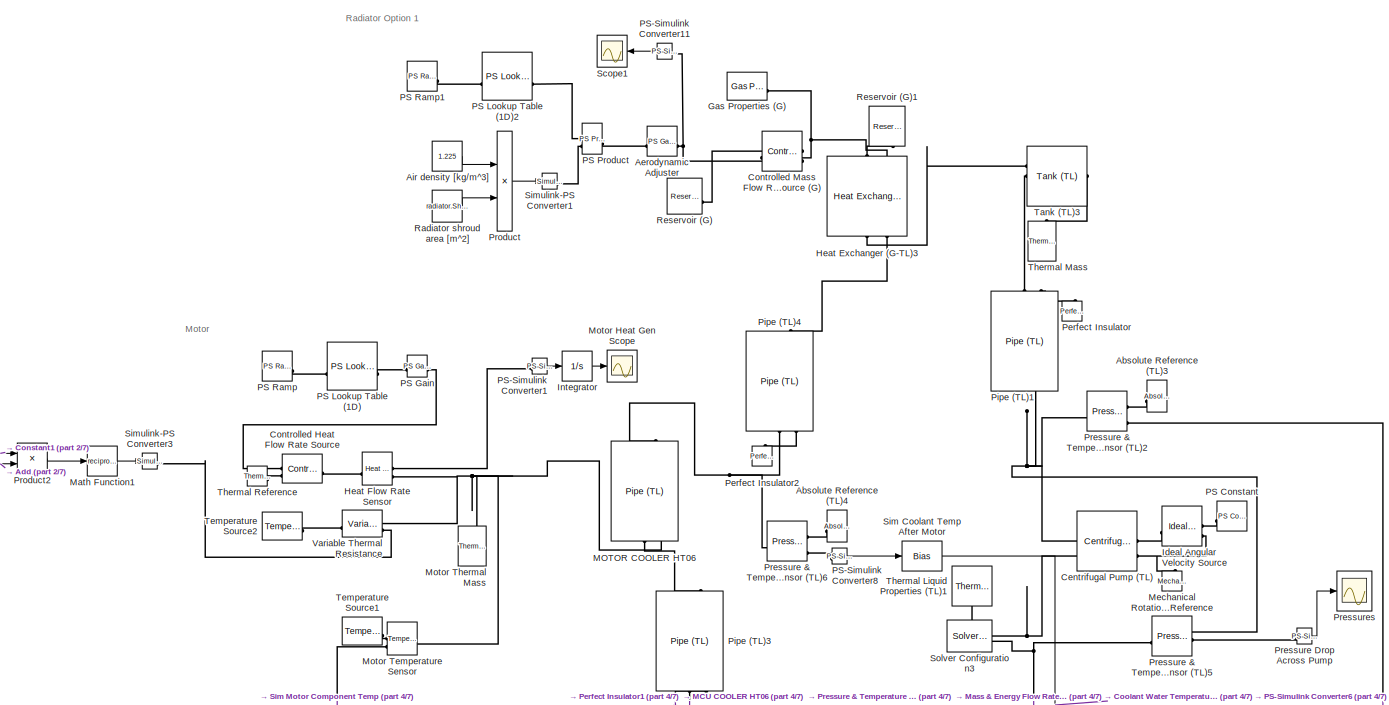
[diagram: root canvas - part 1/7, top left region]
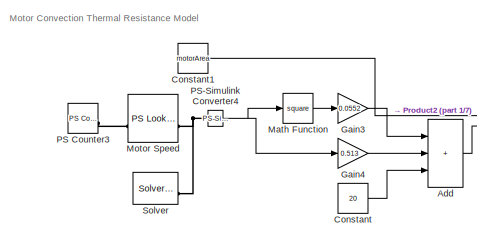
[diagram: root canvas - part 2/7, top left region]
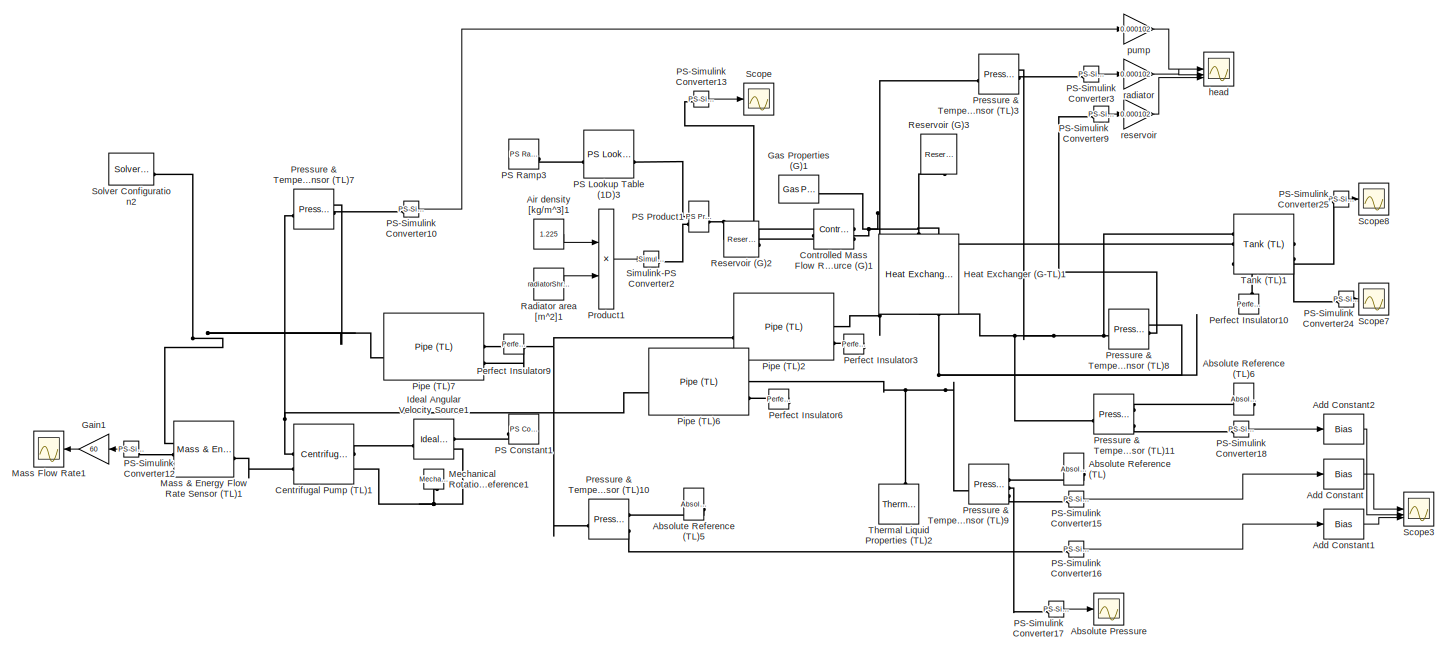
[diagram: root canvas - part 3/7, middle right region]
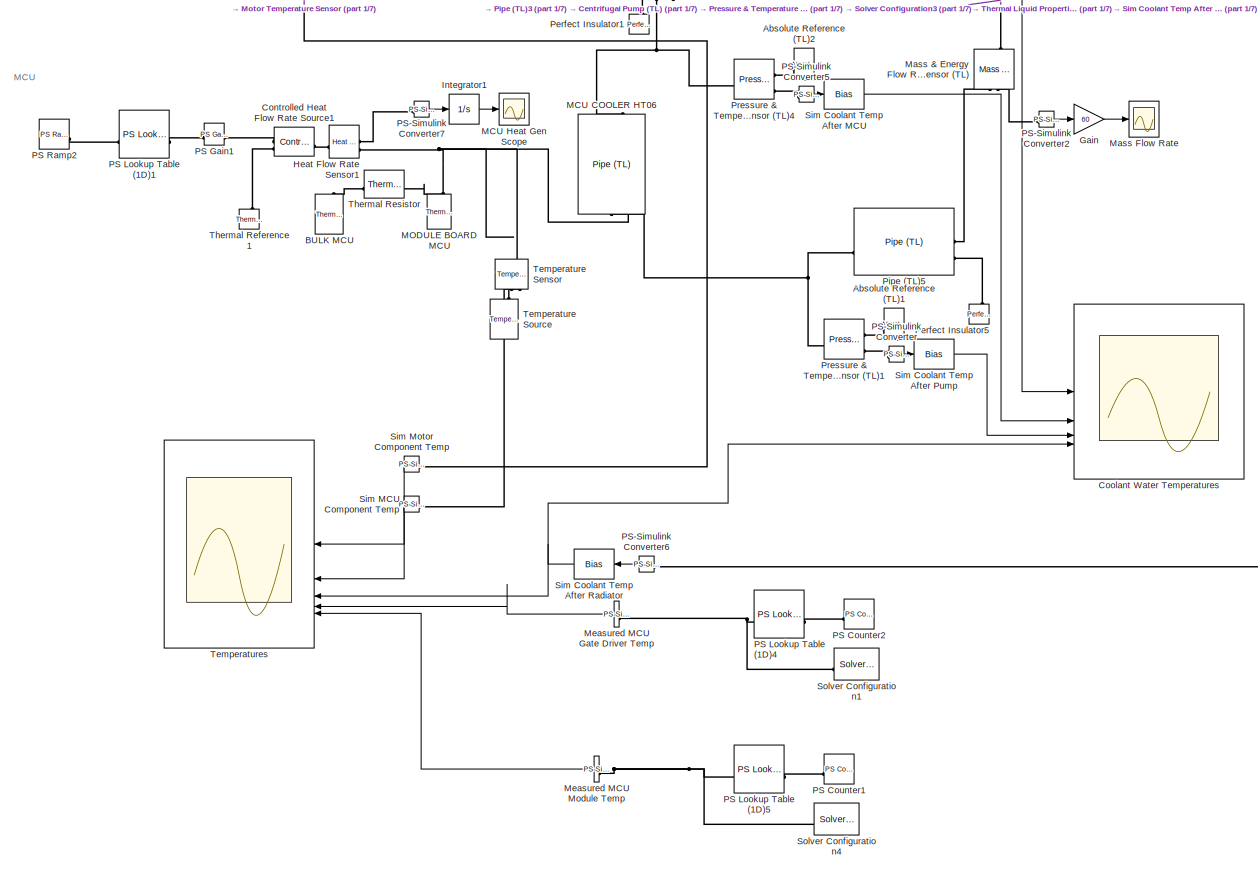
[diagram: root canvas - part 4/7, middle left region]
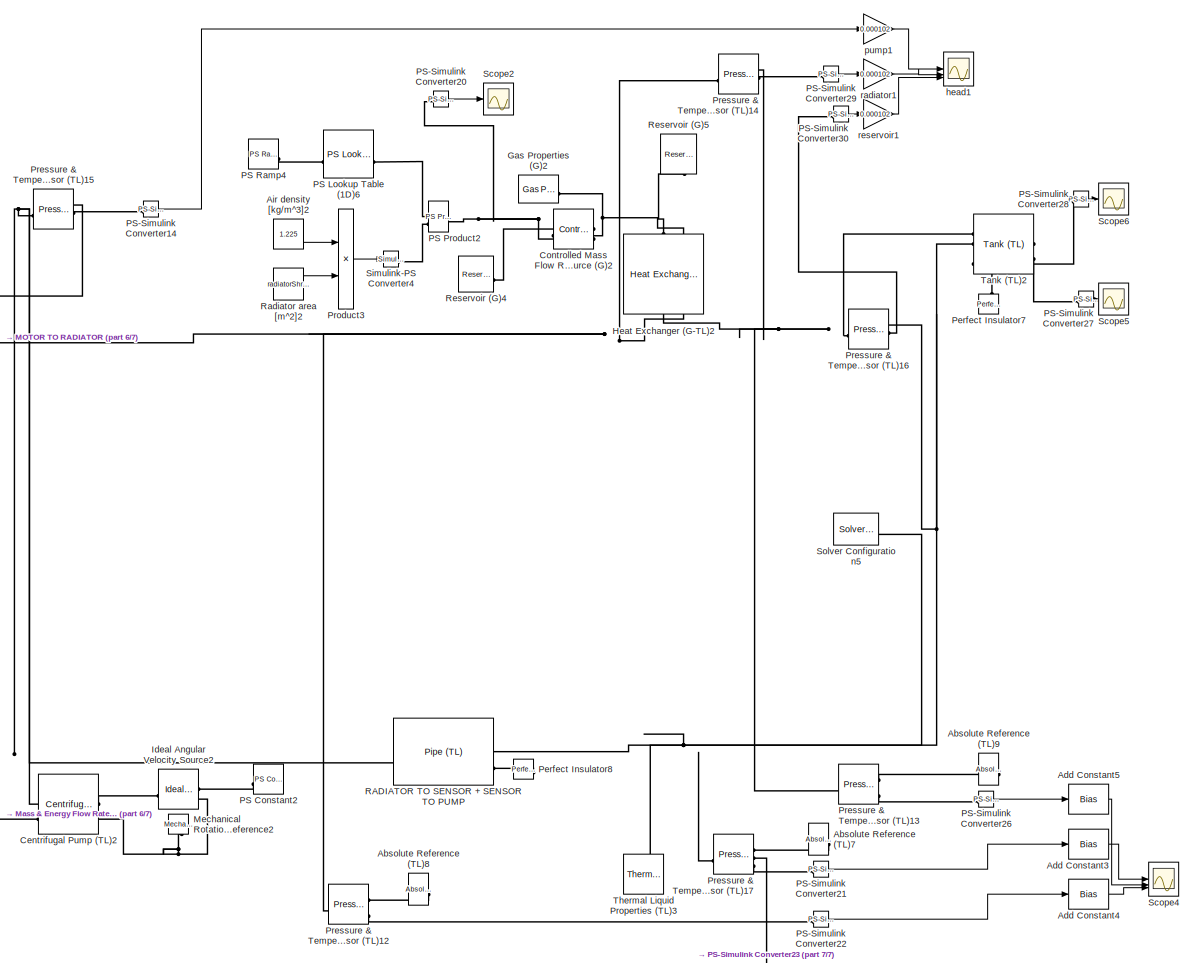
[diagram: root canvas - part 5/7, bottom right region]
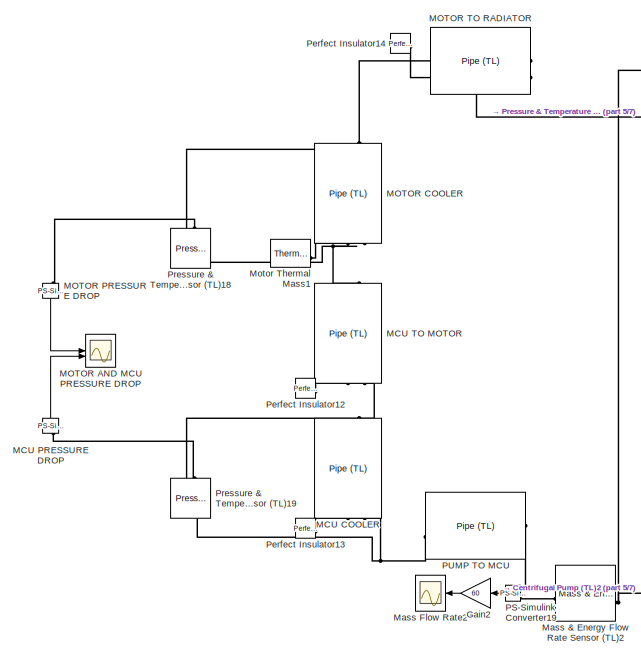
[diagram: root canvas - part 6/7, bottom center region]
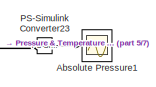
[diagram: root canvas - part 7/7, bottom right region]
MODEL slx_474d291fab17
KIND model
CONFIG AbsTol = auto
CONFIG EnableMultiTasking = off
CONFIG FixedStep = auto
CONFIG MaxStep = auto
CONFIG MinStep = auto
CONFIG RelTol = 1e-4
CONFIG SampleTimeConstraint = Unconstrained
CONFIG SolverName = VariableStepAuto
CONFIG StartTime = 0.0
CONFIG StopTime = timeEnd
BLOCK [Scope] Absolute Pressure
  Commented = on
  Floating = off
  NumInputPorts = 1
  ScopeSpecificationString = Simulink.scopes.TimeScopeBlockCfg('CurrentConfiguration', extmgr.ConfigurationSet(extmgr.Configuration('Core','General UI',true),extmgr.Configuration('Core','Source UI',true),extmgr.Configuration('Sources','WiredSimulink',true,'DataLoggingVariableName','ScopeData5'),extmgr.Configuration('Visuals','Time Domain',true,'SerializedDisplays',{struct('MinYLimReal','102283.72086','MaxYLimReal','102283.720...<+1446ch>
BLOCK [Scope] Absolute Pressure1
  Commented = on
  Floating = off
  NumInputPorts = 1
  ScopeSpecificationString = Simulink.scopes.TimeScopeBlockCfg('CurrentConfiguration', extmgr.ConfigurationSet(extmgr.Configuration('Core','General UI',true),extmgr.Configuration('Core','Source UI',true),extmgr.Configuration('Sources','WiredSimulink',true,'DataLoggingVariableName','ScopeData3'),extmgr.Configuration('Visuals','Time Domain',true,'SerializedDisplays',{struct('MinYLimReal','102281.86423','MaxYLimReal','102281.865...<+1471ch>
BLOCK [Reference] Absolute Reference (TL)  REF=fl_lib/Thermal Liquid/Elements/Absolute Reference
(TL)
  Commented = on
  NameLocation = top
  SourceBlock = fl_lib/Thermal Liquid/Elements/Absolute Reference\n(TL)
  SourceType = Absolute Reference\n(TL)
BLOCK [Reference] Absolute Reference (TL)1  REF=fl_lib/Thermal Liquid/Elements/Absolute Reference
(TL)
  NameLocation = top
  SourceBlock = fl_lib/Thermal Liquid/Elements/Absolute Reference\n(TL)
  SourceType = Absolute Reference\n(TL)
BLOCK [Reference] Absolute Reference (TL)2  REF=fl_lib/Thermal Liquid/Elements/Absolute Reference
(TL)
  NameLocation = top
  SourceBlock = fl_lib/Thermal Liquid/Elements/Absolute Reference\n(TL)
  SourceType = Absolute Reference\n(TL)
BLOCK [Reference] Absolute Reference (TL)3  REF=fl_lib/Thermal Liquid/Elements/Absolute Reference
(TL)
  NameLocation = top
  SourceBlock = fl_lib/Thermal Liquid/Elements/Absolute Reference\n(TL)
  SourceType = Absolute Reference\n(TL)
BLOCK [Reference] Absolute Reference (TL)4  REF=fl_lib/Thermal Liquid/Elements/Absolute Reference
(TL)
  NameLocation = top
  SourceBlock = fl_lib/Thermal Liquid/Elements/Absolute Reference\n(TL)
  SourceType = Absolute Reference\n(TL)
BLOCK [Reference] Absolute Reference (TL)5  REF=fl_lib/Thermal Liquid/Elements/Absolute Reference
(TL)
  Commented = on
  NameLocation = top
  SourceBlock = fl_lib/Thermal Liquid/Elements/Absolute Reference\n(TL)
  SourceType = Absolute Reference\n(TL)
BLOCK [Reference] Absolute Reference (TL)6  REF=fl_lib/Thermal Liquid/Elements/Absolute Reference
(TL)
  Commented = on
  NameLocation = top
  SourceBlock = fl_lib/Thermal Liquid/Elements/Absolute Reference\n(TL)
  SourceType = Absolute Reference\n(TL)
BLOCK [Reference] Absolute Reference (TL)7  REF=fl_lib/Thermal Liquid/Elements/Absolute Reference
(TL)
  Commented = on
  NameLocation = top
  SourceBlock = fl_lib/Thermal Liquid/Elements/Absolute Reference\n(TL)
  SourceType = Absolute Reference\n(TL)
BLOCK [Reference] Absolute Reference (TL)8  REF=fl_lib/Thermal Liquid/Elements/Absolute Reference
(TL)
  Commented = on
  NameLocation = top
  SourceBlock = fl_lib/Thermal Liquid/Elements/Absolute Reference\n(TL)
  SourceType = Absolute Reference\n(TL)
BLOCK [Reference] Absolute Reference (TL)9  REF=fl_lib/Thermal Liquid/Elements/Absolute Reference
(TL)
  Commented = on
  NameLocation = top
  SourceBlock = fl_lib/Thermal Liquid/Elements/Absolute Reference\n(TL)
  SourceType = Absolute Reference\n(TL)
BLOCK [Sum] Add
  IconShape = rectangular
  Inputs = +++
BLOCK [Bias] Add Constant
  Bias = -273.15
  Commented = on
  SaturateOnIntegerOverflow = off
BLOCK [Bias] Add Constant1
  Bias = -273.15
  Commented = on
  SaturateOnIntegerOverflow = off
BLOCK [Bias] Add Constant2
  Bias = -273.15
  Commented = on
  SaturateOnIntegerOverflow = off
BLOCK [Bias] Add Constant3
  Bias = -273.15
  Commented = on
  SaturateOnIntegerOverflow = off
BLOCK [Bias] Add Constant4
  Bias = -273.15
  Commented = on
  SaturateOnIntegerOverflow = off
BLOCK [Bias] Add Constant5
  Bias = -273.15
  Commented = on
  SaturateOnIntegerOverflow = off
BLOCK [Reference] Aerodynamic Adjuster  REF=fl_lib/Physical Signals/Functions/PS Gain
  SourceBlock = fl_lib/Physical Signals/Functions/PS Gain
  SourceType = PS Gain
BLOCK [Constant] Air density [kg//m^3]
  Value = 1.225
BLOCK [Constant] Air density [kg//m^3]1
  Commented = on
  Value = 1.225
BLOCK [Constant] Air density [kg//m^3]2
  Commented = on
  Value = 1.225
BLOCK [Reference] BULK MCU  REF=fl_lib/Thermal/Thermal Elements/Thermal Mass
  SourceBlock = fl_lib/Thermal/Thermal Elements/Thermal Mass
  SourceType = Thermal Mass
BLOCK [Reference] Centrifugal Pump (TL)  REF=SimscapeFluids_lib/Thermal Liquid/Pumps & Motors/Centrifugal Pump
(TL)
  SourceBlock = SimscapeFluids_lib/Thermal Liquid/Pumps & Motors/Centrifugal Pump\n(TL)
  SourceType = Centrifugal Pump\n(TL)
BLOCK [Reference] Centrifugal Pump (TL)1  REF=SimscapeFluids_lib/Thermal Liquid/Pumps & Motors/Centrifugal Pump
(TL)
  Commented = on
  SourceBlock = SimscapeFluids_lib/Thermal Liquid/Pumps & Motors/Centrifugal Pump\n(TL)
  SourceType = Centrifugal Pump\n(TL)
BLOCK [Reference] Centrifugal Pump (TL)2  REF=SimscapeFluids_lib/Thermal Liquid/Pumps & Motors/Centrifugal Pump
(TL)
  Commented = on
  SourceBlock = SimscapeFluids_lib/Thermal Liquid/Pumps & Motors/Centrifugal Pump\n(TL)
  SourceType = Centrifugal Pump\n(TL)
BLOCK [Constant] Constant
  Value = 20
BLOCK [Constant] Constant1
  Value = motorArea
BLOCK [Reference] Controlled Heat Flow Rate Source  REF=fl_lib/Thermal/Thermal Sources/Controlled Heat Flow
Rate Source
  SourceBlock = fl_lib/Thermal/Thermal Sources/Controlled Heat Flow\nRate Source
  SourceType = Controlled Heat Flow\nRate Source
BLOCK [Reference] Controlled Heat Flow Rate Source1  REF=fl_lib/Thermal/Thermal Sources/Controlled Heat Flow
Rate Source
  SourceBlock = fl_lib/Thermal/Thermal Sources/Controlled Heat Flow\nRate Source
  SourceType = Controlled Heat Flow\nRate Source
BLOCK [Reference] Controlled Mass Flow Rate Source (G)  REF=fl_lib/Gas/Sources/Controlled Mass Flow
Rate Source (G)
  SourceBlock = fl_lib/Gas/Sources/Controlled Mass Flow\nRate Source (G)
  SourceType = Controlled Mass Flow\nRate Source (G)
BLOCK [Reference] Controlled Mass Flow Rate Source (G)1  REF=fl_lib/Gas/Sources/Controlled Mass Flow
Rate Source (G)
  Commented = on
  SourceBlock = fl_lib/Gas/Sources/Controlled Mass Flow\nRate Source (G)
  SourceType = Controlled Mass Flow\nRate Source (G)
BLOCK [Reference] Controlled Mass Flow Rate Source (G)2  REF=fl_lib/Gas/Sources/Controlled Mass Flow
Rate Source (G)
  Commented = on
  SourceBlock = fl_lib/Gas/Sources/Controlled Mass Flow\nRate Source (G)
  SourceType = Controlled Mass Flow\nRate Source (G)
BLOCK [Scope] Coolant Water Temperatures
  Floating = off
  NumInputPorts = 4
  ScopeSpecificationString = Simulink.scopes.TimeScopeBlockCfg('CurrentConfiguration', extmgr.ConfigurationSet(extmgr.Configuration('Core','General UI',true),extmgr.Configuration('Core','Source UI',true),extmgr.Configuration('Sources','WiredSimulink',true,'DataLoggingVariableName','ScopeData1'),extmgr.Configuration('Visuals','Time Domain',true,'SerializedDisplays',{struct('MinYLimReal','24.90107','MaxYLimReal','57.3899','YLab...<+1583ch>
BLOCK [Gain] Gain
  Gain = 60
BLOCK [Gain] Gain1
  Commented = on
  Gain = 60
BLOCK [Gain] Gain2
  Commented = on
  Gain = 60
BLOCK [Gain] Gain3
  Gain = 0.0552
BLOCK [Gain] Gain4
  Gain = 0.513
BLOCK [Reference] Gas Properties (G)  REF=fl_lib/Gas/Utilities/Gas Properties (G)
  SourceBlock = fl_lib/Gas/Utilities/Gas Properties (G)
  SourceType = Gas Properties (G)
BLOCK [Reference] Gas Properties (G)1  REF=fl_lib/Gas/Utilities/Gas Properties (G)
  Commented = on
  SourceBlock = fl_lib/Gas/Utilities/Gas Properties (G)
  SourceType = Gas Properties (G)
BLOCK [Reference] Gas Properties (G)2  REF=fl_lib/Gas/Utilities/Gas Properties (G)
  Commented = on
  SourceBlock = fl_lib/Gas/Utilities/Gas Properties (G)
  SourceType = Gas Properties (G)
BLOCK [Reference] Heat Exchanger (G-TL)1  REF=SimscapeFluids_lib/Fluid Network
Interfaces/Heat Exchangers/Heat Exchanger
(G-TL)
  Commented = on
  NameLocation = left
  SourceBlock = SimscapeFluids_lib/Fluid Network\nInterfaces/Heat Exchangers/Heat Exchanger\n(G-TL)
  SourceType = Heat Exchanger\n(G-TL)
BLOCK [Reference] Heat Exchanger (G-TL)2  REF=SimscapeFluids_lib/Fluid Network
Interfaces/Heat Exchangers/Heat Exchanger
(G-TL)
  Commented = on
  NameLocation = left
  SourceBlock = SimscapeFluids_lib/Fluid Network\nInterfaces/Heat Exchangers/Heat Exchanger\n(G-TL)
  SourceType = Heat Exchanger\n(G-TL)
BLOCK [Reference] Heat Exchanger (G-TL)3  REF=SimscapeFluids_lib/Fluid Network
Interfaces/Heat Exchangers/Heat Exchanger
(G-TL)
  NameLocation = left
  SourceBlock = SimscapeFluids_lib/Fluid Network\nInterfaces/Heat Exchangers/Heat Exchanger\n(G-TL)
  SourceType = Heat Exchanger\n(G-TL)
BLOCK [Reference] Heat Flow Rate Sensor  REF=fl_lib/Thermal/Thermal Sensors/Heat Flow Rate
Sensor
  SourceBlock = fl_lib/Thermal/Thermal Sensors/Heat Flow Rate\nSensor
  SourceType = Heat Flow Rate\nSensor
BLOCK [Reference] Heat Flow Rate Sensor1  REF=fl_lib/Thermal/Thermal Sensors/Heat Flow Rate
Sensor
  SourceBlock = fl_lib/Thermal/Thermal Sensors/Heat Flow Rate\nSensor
  SourceType = Heat Flow Rate\nSensor
BLOCK [Reference] Ideal Angular Velocity Source  REF=fl_lib/Mechanical/Mechanical Sources/Ideal Angular
Velocity Source
  SourceBlock = fl_lib/Mechanical/Mechanical Sources/Ideal Angular\nVelocity Source
  SourceType = Ideal Angular\nVelocity Source
BLOCK [Reference] Ideal Angular Velocity Source1  REF=fl_lib/Mechanical/Mechanical Sources/Ideal Angular
Velocity Source
  Commented = on
  NameLocation = top
  SourceBlock = fl_lib/Mechanical/Mechanical Sources/Ideal Angular\nVelocity Source
  SourceType = Ideal Angular\nVelocity Source
BLOCK [Reference] Ideal Angular Velocity Source2  REF=fl_lib/Mechanical/Mechanical Sources/Ideal Angular
Velocity Source
  Commented = on
  NameLocation = top
  SourceBlock = fl_lib/Mechanical/Mechanical Sources/Ideal Angular\nVelocity Source
  SourceType = Ideal Angular\nVelocity Source
BLOCK [Integrator] Integrator
BLOCK [Integrator] Integrator1
BLOCK [Reference] MCU COOLER  REF=SimscapeFluids_lib/Thermal Liquid/Pipes & Fittings/Pipe (TL)
  Commented = on
  NameLocation = left
  SourceBlock = SimscapeFluids_lib/Thermal Liquid/Pipes & Fittings/Pipe (TL)
  SourceType = Pipe (TL)
BLOCK [Reference] MCU COOLER HT06  REF=SimscapeFluids_lib/Thermal Liquid/Pipes & Fittings/Pipe (TL)
  NameLocation = left
  SourceBlock = SimscapeFluids_lib/Thermal Liquid/Pipes & Fittings/Pipe (TL)
  SourceType = Pipe (TL)
BLOCK [Scope] MCU Heat Gen Scope
  Floating = off
  NumInputPorts = 1
  ScopeSpecificationString = Simulink.scopes.TimeScopeBlockCfg('CurrentConfiguration', extmgr.ConfigurationSet(extmgr.Configuration('Core','General UI',true),extmgr.Configuration('Core','Source UI',true),extmgr.Configuration('Sources','WiredSimulink',true,'DataLoggingVariableName','ScopeData4'),extmgr.Configuration('Visuals','Time Domain',true,'SerializedDisplays',{struct('MinYLimReal','330637.28071','MaxYLimReal','331075.511...<+1427ch>
BLOCK [Reference] MCU PRESSURE DROP  REF=nesl_utility/PS-Simulink
Converter
  Commented = on
  NameLocation = left
  SourceBlock = nesl_utility/PS-Simulink\nConverter
  SourceType = PS-Simulink\nConverter
BLOCK [Reference] MCU TO MOTOR  REF=fl_lib/Thermal Liquid/Elements/Pipe (TL)
  Commented = on
  NameLocation = right
  SourceBlock = fl_lib/Thermal Liquid/Elements/Pipe (TL)
  SourceType = Pipe (TL)
BLOCK [Reference] MODULE BOARD MCU  REF=fl_lib/Thermal/Thermal Elements/Thermal Mass
  SourceBlock = fl_lib/Thermal/Thermal Elements/Thermal Mass
  SourceType = Thermal Mass
BLOCK [Scope] MOTOR AND MCU PRESSURE DROP
  Commented = on
  Floating = off
  NumInputPorts = 2
  ScopeSpecificationString = Simulink.scopes.TimeScopeBlockCfg('CurrentConfiguration', extmgr.ConfigurationSet(extmgr.Configuration('Core','General UI',true),extmgr.Configuration('Core','Source UI',true),extmgr.Configuration('Sources','WiredSimulink',true,'DataLoggingVariableName','ScopeData14'),extmgr.Configuration('Visuals','Time Domain',true,'SerializedDisplays',{struct('MinYLimReal','1765.90545','MaxYLimReal','29640.85043...<+1488ch>
BLOCK [Reference] MOTOR COOLER  REF=SimscapeFluids_lib/Thermal Liquid/Pipes & Fittings/Pipe (TL)
  Commented = on
  NameLocation = left
  SourceBlock = SimscapeFluids_lib/Thermal Liquid/Pipes & Fittings/Pipe (TL)
  SourceType = Pipe (TL)
BLOCK [Reference] MOTOR COOLER HT06  REF=SimscapeFluids_lib/Thermal Liquid/Pipes & Fittings/Pipe (TL)
  NameLocation = left
  SourceBlock = SimscapeFluids_lib/Thermal Liquid/Pipes & Fittings/Pipe (TL)
  SourceType = Pipe (TL)
BLOCK [Reference] MOTOR PRESSURE DROP  REF=nesl_utility/PS-Simulink
Converter
  Commented = on
  NameLocation = left
  SourceBlock = nesl_utility/PS-Simulink\nConverter
  SourceType = PS-Simulink\nConverter
BLOCK [Reference] MOTOR TO RADIATOR  REF=fl_lib/Thermal Liquid/Elements/Pipe (TL)
  Commented = on
  SourceBlock = fl_lib/Thermal Liquid/Elements/Pipe (TL)
  SourceType = Pipe (TL)
BLOCK [Reference] Mass & Energy Flow Rate Sensor (TL)  REF=fl_lib/Thermal Liquid/Sensors/Mass & Energy Flow
Rate Sensor (TL)
  NameLocation = left
  SourceBlock = fl_lib/Thermal Liquid/Sensors/Mass & Energy Flow\nRate Sensor (TL)
  SourceType = Mass & Energy Flow\nRate Sensor (TL)
BLOCK [Reference] Mass & Energy Flow Rate Sensor (TL)1  REF=fl_lib/Thermal Liquid/Sensors/Mass & Energy Flow
Rate Sensor (TL)
  Commented = on
  SourceBlock = fl_lib/Thermal Liquid/Sensors/Mass & Energy Flow\nRate Sensor (TL)
  SourceType = Mass & Energy Flow\nRate Sensor (TL)
BLOCK [Reference] Mass & Energy Flow Rate Sensor (TL)2  REF=fl_lib/Thermal Liquid/Sensors/Mass & Energy Flow
Rate Sensor (TL)
  Commented = on
  SourceBlock = fl_lib/Thermal Liquid/Sensors/Mass & Energy Flow\nRate Sensor (TL)
  SourceType = Mass & Energy Flow\nRate Sensor (TL)
BLOCK [Scope] Mass Flow Rate
  Floating = off
  NumInputPorts = 1
  ScopeSpecificationString = Simulink.scopes.TimeScopeBlockCfg('CurrentConfiguration', extmgr.ConfigurationSet(extmgr.Configuration('Core','General UI',true),extmgr.Configuration('Core','Source UI',true),extmgr.Configuration('Sources','WiredSimulink',true,'DataLoggingVariableName','ScopeData1'),extmgr.Configuration('Visuals','Time Domain',true,'SerializedDisplays',{struct('MinYLimReal','5.80709','MaxYLimReal','5.8665','YLabel...<+1761ch>
BLOCK [Scope] Mass Flow Rate1
  Commented = on
  Floating = off
  NumInputPorts = 1
  ScopeSpecificationString = Simulink.scopes.TimeScopeBlockCfg('CurrentConfiguration', extmgr.ConfigurationSet(extmgr.Configuration('Core','General UI',true),extmgr.Configuration('Core','Source UI',true),extmgr.Configuration('Sources','WiredSimulink',true,'DataLoggingVariableName','ScopeData2'),extmgr.Configuration('Visuals','Time Domain',true,'SerializedDisplays',{struct('MinYLimReal','13.87017','MaxYLimReal','13.87082','YLa...<+1723ch>
BLOCK [Scope] Mass Flow Rate2
  Commented = on
  Floating = off
  NumInputPorts = 1
  ScopeSpecificationString = Simulink.scopes.TimeScopeBlockCfg('CurrentConfiguration', extmgr.ConfigurationSet(extmgr.Configuration('Core','General UI',true),extmgr.Configuration('Core','Source UI',true),extmgr.Configuration('Sources','WiredSimulink',true,'DataLoggingVariableName','ScopeData6'),extmgr.Configuration('Visuals','Time Domain',true,'SerializedDisplays',{struct('MinYLimReal','5.81766','MaxYLimReal','5.81927','YLabe...<+1415ch>
BLOCK [Math] Math Function
  Operator = square
BLOCK [Math] Math Function1
  Operator = reciprocal
BLOCK [Reference] Measured MCU Gate Driver Temp  REF=nesl_utility/PS-Simulink
Converter
  SourceBlock = nesl_utility/PS-Simulink\nConverter
  SourceType = PS-Simulink\nConverter
BLOCK [Reference] Measured MCU Module Temp  REF=nesl_utility/PS-Simulink
Converter
  SourceBlock = nesl_utility/PS-Simulink\nConverter
  SourceType = PS-Simulink\nConverter
BLOCK [Reference] Mechanical Rotational Reference  REF=fl_lib/Mechanical/Rotational Elements/Mechanical
Rotational Reference
  NameLocation = right
  SourceBlock = fl_lib/Mechanical/Rotational Elements/Mechanical\nRotational Reference
  SourceType = Mechanical\nRotational Reference
BLOCK [Reference] Mechanical Rotational Reference1  REF=fl_lib/Mechanical/Rotational Elements/Mechanical
Rotational Reference
  Commented = on
  NameLocation = left
  SourceBlock = fl_lib/Mechanical/Rotational Elements/Mechanical\nRotational Reference
  SourceType = Mechanical\nRotational Reference
BLOCK [Reference] Mechanical Rotational Reference2  REF=fl_lib/Mechanical/Rotational Elements/Mechanical
Rotational Reference
  Commented = on
  NameLocation = left
  SourceBlock = fl_lib/Mechanical/Rotational Elements/Mechanical\nRotational Reference
  SourceType = Mechanical\nRotational Reference
BLOCK [Scope] Motor Heat Gen Scope
  Floating = off
  NumInputPorts = 1
  ScopeSpecificationString = Simulink.scopes.TimeScopeBlockCfg('CurrentConfiguration', extmgr.ConfigurationSet(extmgr.Configuration('Core','General UI',true),extmgr.Configuration('Core','Source UI',true),extmgr.Configuration('Sources','WiredSimulink',true,'DataLoggingVariableName','ScopeData1'),extmgr.Configuration('Visuals','Time Domain',true,'SerializedDisplays',{struct('MinYLimReal','-162466.1659','MaxYLimReal','1462195.49...<+1490ch>
BLOCK [Reference] Motor Speed  REF=fl_lib/Physical Signals/Lookup Tables/PS Lookup Table (1D)
  SourceBlock = fl_lib/Physical Signals/Lookup Tables/PS Lookup Table (1D)
  SourceType = PS Lookup Table (1D)
BLOCK [Reference] Motor Temperature Sensor  REF=fl_lib/Thermal/Thermal Sensors/Temperature Sensor
  SourceBlock = fl_lib/Thermal/Thermal Sensors/Temperature Sensor
  SourceType = Temperature Sensor
BLOCK [Reference] Motor Thermal Mass  REF=fl_lib/Thermal/Thermal Elements/Thermal Mass
  NameLocation = right
  SourceBlock = fl_lib/Thermal/Thermal Elements/Thermal Mass
  SourceType = Thermal Mass
BLOCK [Reference] Motor Thermal Mass1  REF=fl_lib/Thermal/Thermal Elements/Thermal Mass
  Commented = on
  SourceBlock = fl_lib/Thermal/Thermal Elements/Thermal Mass
  SourceType = Thermal Mass
BLOCK [Reference] PS Constant  REF=fl_lib/Physical Signals/Sources/PS Constant
  SourceBlock = fl_lib/Physical Signals/Sources/PS Constant
  SourceType = PS Constant
BLOCK [Reference] PS Constant1  REF=fl_lib/Physical Signals/Sources/PS Constant
  Commented = on
  SourceBlock = fl_lib/Physical Signals/Sources/PS Constant
  SourceType = PS Constant
BLOCK [Reference] PS Constant2  REF=fl_lib/Physical Signals/Sources/PS Constant
  Commented = on
  SourceBlock = fl_lib/Physical Signals/Sources/PS Constant
  SourceType = PS Constant
BLOCK [Reference] PS Counter1  REF=fl_lib/Physical Signals/Sources/PS Counter
  SourceBlock = fl_lib/Physical Signals/Sources/PS Counter
  SourceType = PS Counter
BLOCK [Reference] PS Counter2  REF=fl_lib/Physical Signals/Sources/PS Counter
  SourceBlock = fl_lib/Physical Signals/Sources/PS Counter
  SourceType = PS Counter
BLOCK [Reference] PS Counter3  REF=fl_lib/Physical Signals/Sources/PS Counter
  SourceBlock = fl_lib/Physical Signals/Sources/PS Counter
  SourceType = PS Counter
BLOCK [Reference] PS Gain  REF=fl_lib/Physical Signals/Functions/PS Gain
  SourceBlock = fl_lib/Physical Signals/Functions/PS Gain
  SourceType = PS Gain
BLOCK [Reference] PS Gain1  REF=fl_lib/Physical Signals/Functions/PS Gain
  SourceBlock = fl_lib/Physical Signals/Functions/PS Gain
  SourceType = PS Gain
BLOCK [Reference] PS Lookup Table (1D)  REF=fl_lib/Physical Signals/Lookup Tables/PS Lookup Table (1D)
  SourceBlock = fl_lib/Physical Signals/Lookup Tables/PS Lookup Table (1D)
  SourceType = PS Lookup Table (1D)
BLOCK [Reference] PS Lookup Table (1D)1  REF=fl_lib/Physical Signals/Lookup Tables/PS Lookup Table (1D)
  SourceBlock = fl_lib/Physical Signals/Lookup Tables/PS Lookup Table (1D)
  SourceType = PS Lookup Table (1D)
BLOCK [Reference] PS Lookup Table (1D)2  REF=fl_lib/Physical Signals/Lookup Tables/PS Lookup Table (1D)
  SourceBlock = fl_lib/Physical Signals/Lookup Tables/PS Lookup Table (1D)
  SourceType = PS Lookup Table (1D)
BLOCK [Reference] PS Lookup Table (1D)3  REF=fl_lib/Physical Signals/Lookup Tables/PS Lookup Table (1D)
  Commented = on
  SourceBlock = fl_lib/Physical Signals/Lookup Tables/PS Lookup Table (1D)
  SourceType = PS Lookup Table (1D)
BLOCK [Reference] PS Lookup Table (1D)4  REF=fl_lib/Physical Signals/Lookup Tables/PS Lookup Table (1D)
  SourceBlock = fl_lib/Physical Signals/Lookup Tables/PS Lookup Table (1D)
  SourceType = PS Lookup Table (1D)
BLOCK [Reference] PS Lookup Table (1D)5  REF=fl_lib/Physical Signals/Lookup Tables/PS Lookup Table (1D)
  SourceBlock = fl_lib/Physical Signals/Lookup Tables/PS Lookup Table (1D)
  SourceType = PS Lookup Table (1D)
BLOCK [Reference] PS Lookup Table (1D)6  REF=fl_lib/Physical Signals/Lookup Tables/PS Lookup Table (1D)
  Commented = on
  SourceBlock = fl_lib/Physical Signals/Lookup Tables/PS Lookup Table (1D)
  SourceType = PS Lookup Table (1D)
BLOCK [Reference] PS Product  REF=fl_lib/Physical Signals/Functions/PS Product
  SourceBlock = fl_lib/Physical Signals/Functions/PS Product
  SourceType = PS Product
BLOCK [Reference] PS Product1  REF=fl_lib/Physical Signals/Functions/PS Product
  Commented = on
  SourceBlock = fl_lib/Physical Signals/Functions/PS Product
  SourceType = PS Product
BLOCK [Reference] PS Product2  REF=fl_lib/Physical Signals/Functions/PS Product
  Commented = on
  SourceBlock = fl_lib/Physical Signals/Functions/PS Product
  SourceType = PS Product
BLOCK [Reference] PS Ramp  REF=fl_lib/Physical Signals/Sources/PS Ramp
  SourceBlock = fl_lib/Physical Signals/Sources/PS Ramp
  SourceType = PS Ramp
BLOCK [Reference] PS Ramp1  REF=fl_lib/Physical Signals/Sources/PS Ramp
  SourceBlock = fl_lib/Physical Signals/Sources/PS Ramp
  SourceType = PS Ramp
BLOCK [Reference] PS Ramp2  REF=fl_lib/Physical Signals/Sources/PS Ramp
  SourceBlock = fl_lib/Physical Signals/Sources/PS Ramp
  SourceType = PS Ramp
BLOCK [Reference] PS Ramp3  REF=fl_lib/Physical Signals/Sources/PS Ramp
  Commented = on
  SourceBlock = fl_lib/Physical Signals/Sources/PS Ramp
  SourceType = PS Ramp
BLOCK [Reference] PS Ramp4  REF=fl_lib/Physical Signals/Sources/PS Ramp
  Commented = on
  SourceBlock = fl_lib/Physical Signals/Sources/PS Ramp
  SourceType = PS Ramp
BLOCK [Reference] PS-Simulink Converter  REF=nesl_utility/PS-Simulink
Converter
  SourceBlock = nesl_utility/PS-Simulink\nConverter
  SourceType = PS-Simulink\nConverter
BLOCK [Reference] PS-Simulink Converter1  REF=nesl_utility/PS-Simulink
Converter
  SourceBlock = nesl_utility/PS-Simulink\nConverter
  SourceType = PS-Simulink\nConverter
BLOCK [Reference] PS-Simulink Converter10  REF=nesl_utility/PS-Simulink
Converter
  Commented = on
  SourceBlock = nesl_utility/PS-Simulink\nConverter
  SourceType = PS-Simulink\nConverter
BLOCK [Reference] PS-Simulink Converter11  REF=nesl_utility/PS-Simulink
Converter
  NameLocation = top
  SourceBlock = nesl_utility/PS-Simulink\nConverter
  SourceType = PS-Simulink\nConverter
BLOCK [Reference] PS-Simulink Converter12  REF=nesl_utility/PS-Simulink
Converter
  Commented = on
  SourceBlock = nesl_utility/PS-Simulink\nConverter
  SourceType = PS-Simulink\nConverter
BLOCK [Reference] PS-Simulink Converter13  REF=nesl_utility/PS-Simulink
Converter
  Commented = on
  SourceBlock = nesl_utility/PS-Simulink\nConverter
  SourceType = PS-Simulink\nConverter
BLOCK [Reference] PS-Simulink Converter14  REF=nesl_utility/PS-Simulink
Converter
  Commented = on
  SourceBlock = nesl_utility/PS-Simulink\nConverter
  SourceType = PS-Simulink\nConverter
BLOCK [Reference] PS-Simulink Converter15  REF=nesl_utility/PS-Simulink
Converter
  Commented = on
  SourceBlock = nesl_utility/PS-Simulink\nConverter
  SourceType = PS-Simulink\nConverter
BLOCK [Reference] PS-Simulink Converter16  REF=nesl_utility/PS-Simulink
Converter
  Commented = on
  SourceBlock = nesl_utility/PS-Simulink\nConverter
  SourceType = PS-Simulink\nConverter
BLOCK [Reference] PS-Simulink Converter17  REF=nesl_utility/PS-Simulink
Converter
  Commented = on
  SourceBlock = nesl_utility/PS-Simulink\nConverter
  SourceType = PS-Simulink\nConverter
BLOCK [Reference] PS-Simulink Converter18  REF=nesl_utility/PS-Simulink
Converter
  Commented = on
  SourceBlock = nesl_utility/PS-Simulink\nConverter
  SourceType = PS-Simulink\nConverter
BLOCK [Reference] PS-Simulink Converter19  REF=nesl_utility/PS-Simulink
Converter
  Commented = on
  SourceBlock = nesl_utility/PS-Simulink\nConverter
  SourceType = PS-Simulink\nConverter
BLOCK [Reference] PS-Simulink Converter2  REF=nesl_utility/PS-Simulink
Converter
  SourceBlock = nesl_utility/PS-Simulink\nConverter
  SourceType = PS-Simulink\nConverter
BLOCK [Reference] PS-Simulink Converter20  REF=nesl_utility/PS-Simulink
Converter
  Commented = on
  SourceBlock = nesl_utility/PS-Simulink\nConverter
  SourceType = PS-Simulink\nConverter
BLOCK [Reference] PS-Simulink Converter21  REF=nesl_utility/PS-Simulink
Converter
  Commented = on
  SourceBlock = nesl_utility/PS-Simulink\nConverter
  SourceType = PS-Simulink\nConverter
BLOCK [Reference] PS-Simulink Converter22  REF=nesl_utility/PS-Simulink
Converter
  Commented = on
  SourceBlock = nesl_utility/PS-Simulink\nConverter
  SourceType = PS-Simulink\nConverter
BLOCK [Reference] PS-Simulink Converter23  REF=nesl_utility/PS-Simulink
Converter
  Commented = on
  SourceBlock = nesl_utility/PS-Simulink\nConverter
  SourceType = PS-Simulink\nConverter
BLOCK [Reference] PS-Simulink Converter24  REF=nesl_utility/PS-Simulink
Converter
  Commented = on
  SourceBlock = nesl_utility/PS-Simulink\nConverter
  SourceType = PS-Simulink\nConverter
BLOCK [Reference] PS-Simulink Converter25  REF=nesl_utility/PS-Simulink
Converter
  Commented = on
  SourceBlock = nesl_utility/PS-Simulink\nConverter
  SourceType = PS-Simulink\nConverter
BLOCK [Reference] PS-Simulink Converter26  REF=nesl_utility/PS-Simulink
Converter
  Commented = on
  SourceBlock = nesl_utility/PS-Simulink\nConverter
  SourceType = PS-Simulink\nConverter
BLOCK [Reference] PS-Simulink Converter27  REF=nesl_utility/PS-Simulink
Converter
  Commented = on
  SourceBlock = nesl_utility/PS-Simulink\nConverter
  SourceType = PS-Simulink\nConverter
BLOCK [Reference] PS-Simulink Converter28  REF=nesl_utility/PS-Simulink
Converter
  Commented = on
  SourceBlock = nesl_utility/PS-Simulink\nConverter
  SourceType = PS-Simulink\nConverter
BLOCK [Reference] PS-Simulink Converter29  REF=nesl_utility/PS-Simulink
Converter
  Commented = on
  SourceBlock = nesl_utility/PS-Simulink\nConverter
  SourceType = PS-Simulink\nConverter
BLOCK [Reference] PS-Simulink Converter3  REF=nesl_utility/PS-Simulink
Converter
  Commented = on
  SourceBlock = nesl_utility/PS-Simulink\nConverter
  SourceType = PS-Simulink\nConverter
BLOCK [Reference] PS-Simulink Converter30  REF=nesl_utility/PS-Simulink
Converter
  Commented = on
  SourceBlock = nesl_utility/PS-Simulink\nConverter
  SourceType = PS-Simulink\nConverter
BLOCK [Reference] PS-Simulink Converter4  REF=nesl_utility/PS-Simulink
Converter
  SourceBlock = nesl_utility/PS-Simulink\nConverter
  SourceType = PS-Simulink\nConverter
BLOCK [Reference] PS-Simulink Converter5  REF=nesl_utility/PS-Simulink
Converter
  SourceBlock = nesl_utility/PS-Simulink\nConverter
  SourceType = PS-Simulink\nConverter
BLOCK [Reference] PS-Simulink Converter6  REF=nesl_utility/PS-Simulink
Converter
  NameLocation = top
  SourceBlock = nesl_utility/PS-Simulink\nConverter
  SourceType = PS-Simulink\nConverter
BLOCK [Reference] PS-Simulink Converter7  REF=nesl_utility/PS-Simulink
Converter
  SourceBlock = nesl_utility/PS-Simulink\nConverter
  SourceType = PS-Simulink\nConverter
BLOCK [Reference] PS-Simulink Converter8  REF=nesl_utility/PS-Simulink
Converter
  SourceBlock = nesl_utility/PS-Simulink\nConverter
  SourceType = PS-Simulink\nConverter
BLOCK [Reference] PS-Simulink Converter9  REF=nesl_utility/PS-Simulink
Converter
  Commented = on
  SourceBlock = nesl_utility/PS-Simulink\nConverter
  SourceType = PS-Simulink\nConverter
BLOCK [Reference] PUMP TO MCU  REF=fl_lib/Thermal Liquid/Elements/Pipe (TL)
  Commented = on
  NameLocation = top
  SourceBlock = fl_lib/Thermal Liquid/Elements/Pipe (TL)
  SourceType = Pipe (TL)
BLOCK [Reference] Perfect Insulator  REF=fl_lib/Thermal/Thermal Elements/Perfect Insulator
  NameLocation = right
  SourceBlock = fl_lib/Thermal/Thermal Elements/Perfect Insulator
  SourceType = Perfect Insulator
BLOCK [Reference] Perfect Insulator1  REF=fl_lib/Thermal/Thermal Elements/Perfect Insulator
  NameLocation = right
  SourceBlock = fl_lib/Thermal/Thermal Elements/Perfect Insulator
  SourceType = Perfect Insulator
BLOCK [Reference] Perfect Insulator10  REF=fl_lib/Thermal/Thermal Elements/Perfect Insulator
  Commented = on
  NameLocation = right
  SourceBlock = fl_lib/Thermal/Thermal Elements/Perfect Insulator
  SourceType = Perfect Insulator
BLOCK [Reference] Perfect Insulator12  REF=fl_lib/Thermal/Thermal Elements/Perfect Insulator
  Commented = on
  SourceBlock = fl_lib/Thermal/Thermal Elements/Perfect Insulator
  SourceType = Perfect Insulator
BLOCK [Reference] Perfect Insulator13  REF=fl_lib/Thermal/Thermal Elements/Perfect Insulator
  Commented = on
  SourceBlock = fl_lib/Thermal/Thermal Elements/Perfect Insulator
  SourceType = Perfect Insulator
BLOCK [Reference] Perfect Insulator14  REF=fl_lib/Thermal/Thermal Elements/Perfect Insulator
  Commented = on
  SourceBlock = fl_lib/Thermal/Thermal Elements/Perfect Insulator
  SourceType = Perfect Insulator
BLOCK [Reference] Perfect Insulator2  REF=fl_lib/Thermal/Thermal Elements/Perfect Insulator
  NameLocation = right
  SourceBlock = fl_lib/Thermal/Thermal Elements/Perfect Insulator
  SourceType = Perfect Insulator
BLOCK [Reference] Perfect Insulator3  REF=fl_lib/Thermal/Thermal Elements/Perfect Insulator
  Commented = on
  NameLocation = top
  SourceBlock = fl_lib/Thermal/Thermal Elements/Perfect Insulator
  SourceType = Perfect Insulator
BLOCK [Reference] Perfect Insulator5  REF=fl_lib/Thermal/Thermal Elements/Perfect Insulator
  NameLocation = right
  SourceBlock = fl_lib/Thermal/Thermal Elements/Perfect Insulator
  SourceType = Perfect Insulator
BLOCK [Reference] Perfect Insulator6  REF=fl_lib/Thermal/Thermal Elements/Perfect Insulator
  Commented = on
  NameLocation = top
  SourceBlock = fl_lib/Thermal/Thermal Elements/Perfect Insulator
  SourceType = Perfect Insulator
BLOCK [Reference] Perfect Insulator7  REF=fl_lib/Thermal/Thermal Elements/Perfect Insulator
  Commented = on
  NameLocation = right
  SourceBlock = fl_lib/Thermal/Thermal Elements/Perfect Insulator
  SourceType = Perfect Insulator
BLOCK [Reference] Perfect Insulator8  REF=fl_lib/Thermal/Thermal Elements/Perfect Insulator
  Commented = on
  NameLocation = top
  SourceBlock = fl_lib/Thermal/Thermal Elements/Perfect Insulator
  SourceType = Perfect Insulator
BLOCK [Reference] Perfect Insulator9  REF=fl_lib/Thermal/Thermal Elements/Perfect Insulator
  Commented = on
  NameLocation = top
  SourceBlock = fl_lib/Thermal/Thermal Elements/Perfect Insulator
  SourceType = Perfect Insulator
BLOCK [Reference] Pipe (TL)1  REF=fl_lib/Thermal Liquid/Elements/Pipe (TL)
  NameLocation = right
  SourceBlock = fl_lib/Thermal Liquid/Elements/Pipe (TL)
  SourceType = Pipe (TL)
BLOCK [Reference] Pipe (TL)2  REF=fl_lib/Thermal Liquid/Elements/Pipe (TL)
  Commented = on
  SourceBlock = fl_lib/Thermal Liquid/Elements/Pipe (TL)
  SourceType = Pipe (TL)
BLOCK [Reference] Pipe (TL)3  REF=fl_lib/Thermal Liquid/Elements/Pipe (TL)
  NameLocation = right
  SourceBlock = fl_lib/Thermal Liquid/Elements/Pipe (TL)
  SourceType = Pipe (TL)
BLOCK [Reference] Pipe (TL)4  REF=fl_lib/Thermal Liquid/Elements/Pipe (TL)
  NameLocation = right
  SourceBlock = fl_lib/Thermal Liquid/Elements/Pipe (TL)
  SourceType = Pipe (TL)
BLOCK [Reference] Pipe (TL)5  REF=fl_lib/Thermal Liquid/Elements/Pipe (TL)
  NameLocation = top
  SourceBlock = fl_lib/Thermal Liquid/Elements/Pipe (TL)
  SourceType = Pipe (TL)
BLOCK [Reference] Pipe (TL)6  REF=fl_lib/Thermal Liquid/Elements/Pipe (TL)
  Commented = on
  SourceBlock = fl_lib/Thermal Liquid/Elements/Pipe (TL)
  SourceType = Pipe (TL)
BLOCK [Reference] Pipe (TL)7  REF=fl_lib/Thermal Liquid/Elements/Pipe (TL)
  Commented = on
  SourceBlock = fl_lib/Thermal Liquid/Elements/Pipe (TL)
  SourceType = Pipe (TL)
BLOCK [Reference] Pressure & Temperature Sensor (TL)1  REF=fl_lib/Thermal Liquid/Sensors/Pressure &
Temperature Sensor
(TL)
  SourceBlock = fl_lib/Thermal Liquid/Sensors/Pressure &\nTemperature Sensor\n(TL)
  SourceType = Pressure &\nTemperature Sensor\n(TL)
BLOCK [Reference] Pressure & Temperature Sensor (TL)10  REF=fl_lib/Thermal Liquid/Sensors/Pressure &
Temperature Sensor
(TL)
  Commented = on
  SourceBlock = fl_lib/Thermal Liquid/Sensors/Pressure &\nTemperature Sensor\n(TL)
  SourceType = Pressure &\nTemperature Sensor\n(TL)
BLOCK [Reference] Pressure & Temperature Sensor (TL)11  REF=fl_lib/Thermal Liquid/Sensors/Pressure &
Temperature Sensor
(TL)
  Commented = on
  SourceBlock = fl_lib/Thermal Liquid/Sensors/Pressure &\nTemperature Sensor\n(TL)
  SourceType = Pressure &\nTemperature Sensor\n(TL)
BLOCK [Reference] Pressure & Temperature Sensor (TL)12  REF=fl_lib/Thermal Liquid/Sensors/Pressure &
Temperature Sensor
(TL)
  Commented = on
  SourceBlock = fl_lib/Thermal Liquid/Sensors/Pressure &\nTemperature Sensor\n(TL)
  SourceType = Pressure &\nTemperature Sensor\n(TL)
BLOCK [Reference] Pressure & Temperature Sensor (TL)13  REF=fl_lib/Thermal Liquid/Sensors/Pressure &
Temperature Sensor
(TL)
  Commented = on
  SourceBlock = fl_lib/Thermal Liquid/Sensors/Pressure &\nTemperature Sensor\n(TL)
  SourceType = Pressure &\nTemperature Sensor\n(TL)
BLOCK [Reference] Pressure & Temperature Sensor (TL)14  REF=fl_lib/Thermal Liquid/Sensors/Pressure &
Temperature Sensor
(TL)
  Commented = on
  SourceBlock = fl_lib/Thermal Liquid/Sensors/Pressure &\nTemperature Sensor\n(TL)
  SourceType = Pressure &\nTemperature Sensor\n(TL)
BLOCK [Reference] Pressure & Temperature Sensor (TL)15  REF=fl_lib/Thermal Liquid/Sensors/Pressure &
Temperature Sensor
(TL)
  Commented = on
  SourceBlock = fl_lib/Thermal Liquid/Sensors/Pressure &\nTemperature Sensor\n(TL)
  SourceType = Pressure &\nTemperature Sensor\n(TL)
BLOCK [Reference] Pressure & Temperature Sensor (TL)16  REF=fl_lib/Thermal Liquid/Sensors/Pressure &
Temperature Sensor
(TL)
  Commented = on
  SourceBlock = fl_lib/Thermal Liquid/Sensors/Pressure &\nTemperature Sensor\n(TL)
  SourceType = Pressure &\nTemperature Sensor\n(TL)
BLOCK [Reference] Pressure & Temperature Sensor (TL)17  REF=fl_lib/Thermal Liquid/Sensors/Pressure &
Temperature Sensor
(TL)
  Commented = on
  SourceBlock = fl_lib/Thermal Liquid/Sensors/Pressure &\nTemperature Sensor\n(TL)
  SourceType = Pressure &\nTemperature Sensor\n(TL)
BLOCK [Reference] Pressure & Temperature Sensor (TL)18  REF=fl_lib/Thermal Liquid/Sensors/Pressure &
Temperature Sensor
(TL)
  Commented = on
  NameLocation = right
  SourceBlock = fl_lib/Thermal Liquid/Sensors/Pressure &\nTemperature Sensor\n(TL)
  SourceType = Pressure &\nTemperature Sensor\n(TL)
BLOCK [Reference] Pressure & Temperature Sensor (TL)19  REF=fl_lib/Thermal Liquid/Sensors/Pressure &
Temperature Sensor
(TL)
  Commented = on
  NameLocation = right
  SourceBlock = fl_lib/Thermal Liquid/Sensors/Pressure &\nTemperature Sensor\n(TL)
  SourceType = Pressure &\nTemperature Sensor\n(TL)
BLOCK [Reference] Pressure & Temperature Sensor (TL)2  REF=fl_lib/Thermal Liquid/Sensors/Pressure &
Temperature Sensor
(TL)
  SourceBlock = fl_lib/Thermal Liquid/Sensors/Pressure &\nTemperature Sensor\n(TL)
  SourceType = Pressure &\nTemperature Sensor\n(TL)
BLOCK [Reference] Pressure & Temperature Sensor (TL)3  REF=fl_lib/Thermal Liquid/Sensors/Pressure &
Temperature Sensor
(TL)
  Commented = on
  SourceBlock = fl_lib/Thermal Liquid/Sensors/Pressure &\nTemperature Sensor\n(TL)
  SourceType = Pressure &\nTemperature Sensor\n(TL)
BLOCK [Reference] Pressure & Temperature Sensor (TL)4  REF=fl_lib/Thermal Liquid/Sensors/Pressure &
Temperature Sensor
(TL)
  SourceBlock = fl_lib/Thermal Liquid/Sensors/Pressure &\nTemperature Sensor\n(TL)
  SourceType = Pressure &\nTemperature Sensor\n(TL)
BLOCK [Reference] Pressure & Temperature Sensor (TL)5  REF=fl_lib/Thermal Liquid/Sensors/Pressure &
Temperature Sensor
(TL)
  SourceBlock = fl_lib/Thermal Liquid/Sensors/Pressure &\nTemperature Sensor\n(TL)
  SourceType = Pressure &\nTemperature Sensor\n(TL)
BLOCK [Reference] Pressure & Temperature Sensor (TL)6  REF=fl_lib/Thermal Liquid/Sensors/Pressure &
Temperature Sensor
(TL)
  SourceBlock = fl_lib/Thermal Liquid/Sensors/Pressure &\nTemperature Sensor\n(TL)
  SourceType = Pressure &\nTemperature Sensor\n(TL)
BLOCK [Reference] Pressure & Temperature Sensor (TL)7  REF=fl_lib/Thermal Liquid/Sensors/Pressure &
Temperature Sensor
(TL)
  Commented = on
  SourceBlock = fl_lib/Thermal Liquid/Sensors/Pressure &\nTemperature Sensor\n(TL)
  SourceType = Pressure &\nTemperature Sensor\n(TL)
BLOCK [Reference] Pressure & Temperature Sensor (TL)8  REF=fl_lib/Thermal Liquid/Sensors/Pressure &
Temperature Sensor
(TL)
  Commented = on
  SourceBlock = fl_lib/Thermal Liquid/Sensors/Pressure &\nTemperature Sensor\n(TL)
  SourceType = Pressure &\nTemperature Sensor\n(TL)
BLOCK [Reference] Pressure & Temperature Sensor (TL)9  REF=fl_lib/Thermal Liquid/Sensors/Pressure &
Temperature Sensor
(TL)
  Commented = on
  SourceBlock = fl_lib/Thermal Liquid/Sensors/Pressure &\nTemperature Sensor\n(TL)
  SourceType = Pressure &\nTemperature Sensor\n(TL)
BLOCK [Reference] Pressure Drop Across Pump  REF=nesl_utility/PS-Simulink
Converter
  SourceBlock = nesl_utility/PS-Simulink\nConverter
  SourceType = PS-Simulink\nConverter
BLOCK [Scope] Pressures
  Floating = off
  NumInputPorts = 1
  ScopeSpecificationString = Simulink.scopes.TimeScopeBlockCfg('CurrentConfiguration', extmgr.ConfigurationSet(extmgr.Configuration('Core','General UI',true),extmgr.Configuration('Core','Source UI',true),extmgr.Configuration('Sources','WiredSimulink',true,'DataLoggingVariableName','ScopeData3'),extmgr.Configuration('Visuals','Time Domain',true,'SerializedDisplays',{struct('MinYLimReal','66422.51162','MaxYLimReal','67894.2471'...<+1801ch>
BLOCK [Product] Product
BLOCK [Product] Product1
  Commented = on
BLOCK [Product] Product2
BLOCK [Product] Product3
  Commented = on
BLOCK [Reference] RADIATOR TO SENSOR + SENSOR TO PUMP  REF=fl_lib/Thermal Liquid/Elements/Pipe (TL)
  Commented = on
  SourceBlock = fl_lib/Thermal Liquid/Elements/Pipe (TL)
  SourceType = Pipe (TL)
BLOCK [Constant] Radiator area [m^2]1
  Commented = on
  Value = radiatorShroudArea
BLOCK [Constant] Radiator area [m^2]2
  Commented = on
  Value = radiatorShroudArea
BLOCK [Constant] Radiator shroud area [m^2]
  Value = radiator.ShroudArea
BLOCK [Reference] Reservoir (G)  REF=fl_lib/Gas/Elements/Reservoir (G)
  SourceBlock = fl_lib/Gas/Elements/Reservoir (G)
  SourceType = Reservoir (G)
BLOCK [Reference] Reservoir (G)1  REF=fl_lib/Gas/Elements/Reservoir (G)
  NameLocation = left
  SourceBlock = fl_lib/Gas/Elements/Reservoir (G)
  SourceType = Reservoir (G)
BLOCK [Reference] Reservoir (G)2  REF=fl_lib/Gas/Elements/Reservoir (G)
  Commented = on
  SourceBlock = fl_lib/Gas/Elements/Reservoir (G)
  SourceType = Reservoir (G)
BLOCK [Reference] Reservoir (G)3  REF=fl_lib/Gas/Elements/Reservoir (G)
  Commented = on
  NameLocation = left
  SourceBlock = fl_lib/Gas/Elements/Reservoir (G)
  SourceType = Reservoir (G)
BLOCK [Reference] Reservoir (G)4  REF=fl_lib/Gas/Elements/Reservoir (G)
  Commented = on
  SourceBlock = fl_lib/Gas/Elements/Reservoir (G)
  SourceType = Reservoir (G)
BLOCK [Reference] Reservoir (G)5  REF=fl_lib/Gas/Elements/Reservoir (G)
  Commented = on
  NameLocation = left
  SourceBlock = fl_lib/Gas/Elements/Reservoir (G)
  SourceType = Reservoir (G)
BLOCK [Scope] Scope
  Commented = on
  Floating = off
  NumInputPorts = 1
  ScopeSpecificationString = Simulink.scopes.TimeScopeBlockCfg('CurrentConfiguration', extmgr.ConfigurationSet(extmgr.Configuration('Core','General UI',true),extmgr.Configuration('Core','Source UI',true),extmgr.Configuration('Sources','WiredSimulink',true,'DataLoggingVariableName','ScopeData1'),extmgr.Configuration('Visuals','Time Domain',true,'SerializedDisplays',{struct('MinYLimReal','-0.00867','MaxYLimReal','0.10559','YLab...<+1483ch>
BLOCK [Scope] Scope1
  Floating = off
  NameLocation = top
  NumInputPorts = 1
  ScopeSpecificationString = Simulink.scopes.TimeScopeBlockCfg('CurrentConfiguration', extmgr.ConfigurationSet(extmgr.Configuration('Core','General UI',true),extmgr.Configuration('Core','Source UI',true),extmgr.Configuration('Sources','WiredSimulink',true,'DataLoggingVariableName','ScopeData1'),extmgr.Configuration('Visuals','Time Domain',true,'SerializedDisplays',{struct('MinYLimReal','-0.06456','MaxYLimReal','0.6803','YLabe...<+1433ch>
BLOCK [Scope] Scope2
  Commented = on
  Floating = off
  NumInputPorts = 1
  ScopeSpecificationString = Simulink.scopes.TimeScopeBlockCfg('CurrentConfiguration', extmgr.ConfigurationSet(extmgr.Configuration('Core','General UI',true),extmgr.Configuration('Core','Source UI',true),extmgr.Configuration('Sources','WiredSimulink',true,'DataLoggingVariableName','ScopeData7'),extmgr.Configuration('Visuals','Time Domain',true,'SerializedDisplays',{struct('MinYLimReal','-0.00867','MaxYLimReal','0.10559','YLab...<+1483ch>
BLOCK [Scope] Scope3
  Commented = on
  Floating = off
  NumInputPorts = 3
  ScopeSpecificationString = Simulink.scopes.TimeScopeBlockCfg('CurrentConfiguration', extmgr.ConfigurationSet(extmgr.Configuration('Core','General UI',true),extmgr.Configuration('Core','Source UI',true),extmgr.Configuration('Sources','WiredSimulink',true,'DataLoggingVariableName','ScopeData4'),extmgr.Configuration('Visuals','Time Domain',true,'SerializedDisplays',{struct('MinYLimReal','29.75102','MaxYLimReal','62.23552','YLa...<+1504ch>
BLOCK [Scope] Scope4
  Commented = on
  Floating = off
  NumInputPorts = 3
  ScopeSpecificationString = Simulink.scopes.TimeScopeBlockCfg('CurrentConfiguration', extmgr.ConfigurationSet(extmgr.Configuration('Core','General UI',true),extmgr.Configuration('Core','Source UI',true),extmgr.Configuration('Sources','WiredSimulink',true,'DataLoggingVariableName','ScopeData8'),extmgr.Configuration('Visuals','Time Domain',true,'SerializedDisplays',{struct('MinYLimReal','29.75102','MaxYLimReal','62.23552','YLa...<+1504ch>
BLOCK [Scope] Scope5
  Commented = on
  Floating = off
  NumInputPorts = 1
  ScopeSpecificationString = Simulink.scopes.TimeScopeBlockCfg('CurrentConfiguration', extmgr.ConfigurationSet(extmgr.Configuration('Core','General UI',true),extmgr.Configuration('Core','Source UI',true),extmgr.Configuration('Sources','WiredSimulink',true,'DataLoggingVariableName','ScopeData9'),extmgr.Configuration('Visuals','Time Domain',true,'SerializedDisplays',{struct('MinYLimReal','298.1494','MaxYLimReal','298.15544','YL...<+1434ch>
BLOCK [Scope] Scope6
  Commented = on
  Floating = off
  NumInputPorts = 1
  ScopeSpecificationString = Simulink.scopes.TimeScopeBlockCfg('CurrentConfiguration', extmgr.ConfigurationSet(extmgr.Configuration('Core','General UI',true),extmgr.Configuration('Core','Source UI',true),extmgr.Configuration('Sources','WiredSimulink',true,'DataLoggingVariableName','ScopeData10'),extmgr.Configuration('Visuals','Time Domain',true,'SerializedDisplays',{struct('MinYLimReal','0.09807691','MaxYLimReal','0.09807706'...<+1460ch>
BLOCK [Scope] Scope7
  Commented = on
  Floating = off
  NumInputPorts = 1
  ScopeSpecificationString = Simulink.scopes.TimeScopeBlockCfg('CurrentConfiguration', extmgr.ConfigurationSet(extmgr.Configuration('Core','General UI',true),extmgr.Configuration('Core','Source UI',true),extmgr.Configuration('Sources','WiredSimulink',true,'DataLoggingVariableName','ScopeData11'),extmgr.Configuration('Visuals','Time Domain',true,'SerializedDisplays',{struct('MinYLimReal','298.1494','MaxYLimReal','298.15544','Y...<+1435ch>
BLOCK [Scope] Scope8
  Commented = on
  Floating = off
  NumInputPorts = 1
  ScopeSpecificationString = Simulink.scopes.TimeScopeBlockCfg('CurrentConfiguration', extmgr.ConfigurationSet(extmgr.Configuration('Core','General UI',true),extmgr.Configuration('Core','Source UI',true),extmgr.Configuration('Sources','WiredSimulink',true,'DataLoggingVariableName','ScopeData12'),extmgr.Configuration('Visuals','Time Domain',true,'SerializedDisplays',{struct('MinYLimReal','0.09807691','MaxYLimReal','0.09807706'...<+1460ch>
BLOCK [Bias] Sim Coolant Temp After MCU
  Bias = -273
  NameLocation = top
  SaturateOnIntegerOverflow = off
BLOCK [Bias] Sim Coolant Temp After Motor
  Bias = -273
  NameLocation = top
  SaturateOnIntegerOverflow = off
BLOCK [Bias] Sim Coolant Temp After Pump
  Bias = -273
  NameLocation = top
  SaturateOnIntegerOverflow = off
BLOCK [Bias] Sim Coolant Temp After Radiator
  Bias = -273
  NameLocation = top
  SaturateOnIntegerOverflow = off
BLOCK [Reference] Sim MCU Component Temp  REF=nesl_utility/PS-Simulink
Converter
  SourceBlock = nesl_utility/PS-Simulink\nConverter
  SourceType = PS-Simulink\nConverter
BLOCK [Reference] Sim Motor Component Temp  REF=nesl_utility/PS-Simulink
Converter
  SourceBlock = nesl_utility/PS-Simulink\nConverter
  SourceType = PS-Simulink\nConverter
BLOCK [Reference] Simulink-PS Converter1  REF=nesl_utility/Simulink-PS
Converter
  SourceBlock = nesl_utility/Simulink-PS\nConverter
  SourceType = Simulink-PS\nConverter
BLOCK [Reference] Simulink-PS Converter2  REF=nesl_utility/Simulink-PS
Converter
  Commented = on
  SourceBlock = nesl_utility/Simulink-PS\nConverter
  SourceType = Simulink-PS\nConverter
BLOCK [Reference] Simulink-PS Converter3  REF=nesl_utility/Simulink-PS
Converter
  SourceBlock = nesl_utility/Simulink-PS\nConverter
  SourceType = Simulink-PS\nConverter
BLOCK [Reference] Simulink-PS Converter4  REF=nesl_utility/Simulink-PS
Converter
  Commented = on
  SourceBlock = nesl_utility/Simulink-PS\nConverter
  SourceType = Simulink-PS\nConverter
BLOCK [Reference] Solver  REF=nesl_utility/Solver
Configuration
  SourceBlock = nesl_utility/Solver\nConfiguration
  SourceType = Solver\nConfiguration
BLOCK [Reference] Solver Configuration1  REF=nesl_utility/Solver
Configuration
  SourceBlock = nesl_utility/Solver\nConfiguration
  SourceType = Solver\nConfiguration
BLOCK [Reference] Solver Configuration2  REF=nesl_utility/Solver
Configuration
  Commented = on
  SourceBlock = nesl_utility/Solver\nConfiguration
  SourceType = Solver\nConfiguration
BLOCK [Reference] Solver Configuration3  REF=nesl_utility/Solver
Configuration
  SourceBlock = nesl_utility/Solver\nConfiguration
  SourceType = Solver\nConfiguration
BLOCK [Reference] Solver Configuration4  REF=nesl_utility/Solver
Configuration
  SourceBlock = nesl_utility/Solver\nConfiguration
  SourceType = Solver\nConfiguration
BLOCK [Reference] Solver Configuration5  REF=nesl_utility/Solver
Configuration
  Commented = on
  SourceBlock = nesl_utility/Solver\nConfiguration
  SourceType = Solver\nConfiguration
BLOCK [Reference] Tank (TL)1  REF=SimscapeFluids_lib/Thermal Liquid/Tanks & Accumulators/Tank (TL)
  Commented = on
  SourceBlock = SimscapeFluids_lib/Thermal Liquid/Tanks & Accumulators/Tank (TL)
  SourceType = Tank (TL)
BLOCK [Reference] Tank (TL)2  REF=SimscapeFluids_lib/Thermal Liquid/Tanks & Accumulators/Tank (TL)
  Commented = on
  SourceBlock = SimscapeFluids_lib/Thermal Liquid/Tanks & Accumulators/Tank (TL)
  SourceType = Tank (TL)
BLOCK [Reference] Tank (TL)3  REF=SimscapeFluids_lib/Thermal Liquid/Tanks & Accumulators/Tank (TL)
  SourceBlock = SimscapeFluids_lib/Thermal Liquid/Tanks & Accumulators/Tank (TL)
  SourceType = Tank (TL)
BLOCK [Reference] Temperature Sensor  REF=fl_lib/Thermal/Thermal Sensors/Temperature Sensor
  NameLocation = right
  SourceBlock = fl_lib/Thermal/Thermal Sensors/Temperature Sensor
  SourceType = Temperature Sensor
BLOCK [Reference] Temperature Source  REF=fl_lib/Thermal/Thermal Sources/Temperature Source
  NameLocation = right
  SourceBlock = fl_lib/Thermal/Thermal Sources/Temperature Source
  SourceType = Temperature Source
BLOCK [Reference] Temperature Source1  REF=fl_lib/Thermal/Thermal Sources/Temperature Source
  SourceBlock = fl_lib/Thermal/Thermal Sources/Temperature Source
  SourceType = Temperature Source
BLOCK [Reference] Temperature Source2  REF=fl_lib/Thermal/Thermal Sources/Temperature Source
  SourceBlock = fl_lib/Thermal/Thermal Sources/Temperature Source
  SourceType = Temperature Source
BLOCK [Scope] Temperatures
  Floating = off
  NameLocation = top
  NumInputPorts = 5
  ScopeSpecificationString = Simulink.scopes.TimeScopeBlockCfg('CurrentConfiguration', extmgr.ConfigurationSet(extmgr.Configuration('Core','General UI',true),extmgr.Configuration('Core','Source UI',true),extmgr.Configuration('Sources','WiredSimulink',true,'DataLoggingVariableName','ScopeData2'),extmgr.Configuration('Visuals','Time Domain',true,'SerializedDisplays',{struct('MinYLimReal','0.69782','MaxYLimReal','88.16189','YLab...<+2073ch>
BLOCK [Reference] Thermal Liquid Properties (TL)1  REF=SimscapeFluids_lib/Thermal Liquid/Utilities/Thermal Liquid
Properties (TL)
  NameLocation = top
  SourceBlock = SimscapeFluids_lib/Thermal Liquid/Utilities/Thermal Liquid\nProperties (TL)
  SourceType = Thermal Liquid\nProperties (TL)
BLOCK [Reference] Thermal Liquid Properties (TL)2  REF=SimscapeFluids_lib/Thermal Liquid/Utilities/Thermal Liquid
Properties (TL)
  Commented = on
  NameLocation = left
  SourceBlock = SimscapeFluids_lib/Thermal Liquid/Utilities/Thermal Liquid\nProperties (TL)
  SourceType = Thermal Liquid\nProperties (TL)
BLOCK [Reference] Thermal Liquid Properties (TL)3  REF=SimscapeFluids_lib/Thermal Liquid/Utilities/Thermal Liquid
Properties (TL)
  Commented = on
  NameLocation = left
  SourceBlock = SimscapeFluids_lib/Thermal Liquid/Utilities/Thermal Liquid\nProperties (TL)
  SourceType = Thermal Liquid\nProperties (TL)
BLOCK [Reference] Thermal Mass  REF=fl_lib/Thermal/Thermal Elements/Thermal Mass
  NameLocation = right
  SourceBlock = fl_lib/Thermal/Thermal Elements/Thermal Mass
  SourceType = Thermal Mass
BLOCK [Reference] Thermal Reference  REF=fl_lib/Thermal/Thermal Elements/Thermal Reference
  SourceBlock = fl_lib/Thermal/Thermal Elements/Thermal Reference
  SourceType = Thermal Reference
BLOCK [Reference] Thermal Reference1  REF=fl_lib/Thermal/Thermal Elements/Thermal Reference
  NameLocation = right
  SourceBlock = fl_lib/Thermal/Thermal Elements/Thermal Reference
  SourceType = Thermal Reference
BLOCK [Reference] Thermal Resistor  REF=ee_lib/Passive/Thermal/Thermal Resistor
  SourceBlock = ee_lib/Passive/Thermal/Thermal Resistor
  SourceType = Thermal Resistor
BLOCK [Reference] Variable Thermal Resistance  REF=fl_lib/Thermal/Thermal Elements/Variable Thermal
Resistance
  SourceBlock = fl_lib/Thermal/Thermal Elements/Variable Thermal\nResistance
  SourceType = Variable Thermal\nResistance
BLOCK [Scope] head
  Commented = on
  Floating = off
  NumInputPorts = 3
  ScopeSpecificationString = Simulink.scopes.TimeScopeBlockCfg('CurrentConfiguration', extmgr.ConfigurationSet(extmgr.Configuration('Core','General UI',true),extmgr.Configuration('Core','Source UI',true),extmgr.Configuration('Sources','WiredSimulink',true,'DataLoggingVariableName','ScopeData2'),extmgr.Configuration('Visuals','Time Domain',true,'SerializedDisplays',{struct('MinYLimReal','-0.813','MaxYLimReal','0.241','YLabelRe...<+1486ch>
BLOCK [Scope] head1
  Commented = on
  Floating = off
  NumInputPorts = 3
  ScopeSpecificationString = Simulink.scopes.TimeScopeBlockCfg('CurrentConfiguration', extmgr.ConfigurationSet(extmgr.Configuration('Core','General UI',true),extmgr.Configuration('Core','Source UI',true),extmgr.Configuration('Sources','WiredSimulink',true,'DataLoggingVariableName','ScopeData13'),extmgr.Configuration('Visuals','Time Domain',true,'SerializedDisplays',{struct('MinYLimReal','-9.63539','MaxYLimReal','5.11583','YLa...<+1488ch>
BLOCK [Gain] pump
  Commented = on
  Gain = 0.000102
BLOCK [Gain] pump1
  Commented = on
  Gain = 0.000102
BLOCK [Gain] radiator
  Commented = on
  Gain = 0.000102
BLOCK [Gain] radiator1
  Commented = on
  Gain = 0.000102
BLOCK [Gain] reservoir
  Commented = on
  Gain = 0.000102
BLOCK [Gain] reservoir1
  Commented = on
  Gain = 0.000102
ANNOTATION (root): MCU
ANNOTATION (root): Motor
ANNOTATION (root): Motor Convection Thermal Resistance Model
ANNOTATION (root): Radiator Option 1
LINE Add Constant1:1 -> Scope3:3
LINE Add Constant2:1 -> Scope3:2
LINE Add Constant3:1 -> Scope4:1
LINE Add Constant4:1 -> Scope4:3
LINE Add Constant5:1 -> Scope4:2
LINE Add Constant:1 -> Scope3:1
LINE Add:1 -> Product2:2
LINE Air density [kg//m^3]1:1 -> Product1:1
LINE Air density [kg//m^3]2:1 -> Product3:1
LINE Air density [kg//m^3]:1 -> Product:1
LINE Constant1:1 -> Product2:1
LINE Constant:1 -> Add:3
LINE Gain1:1 -> Mass Flow Rate1:1
LINE Gain2:1 -> Mass Flow Rate2:1
LINE Gain3:1 -> Add:1
LINE Gain4:1 -> Add:2
LINE Gain:1 -> Mass Flow Rate:1
LINE Integrator1:1 -> MCU Heat Gen Scope:1
LINE Integrator:1 -> Motor Heat Gen Scope:1
LINE MCU PRESSURE DROP:1 -> MOTOR AND MCU PRESSURE DROP:2
LINE MOTOR PRESSURE DROP:1 -> MOTOR AND MCU PRESSURE DROP:1
LINE Math Function1:1 -> Simulink-PS Converter3:1
LINE Math Function:1 -> Gain3:1
LINE Measured MCU Gate Driver Temp:1 -> Temperatures:4
LINE Measured MCU Module Temp:1 -> Temperatures:5
LINE PS-Simulink Converter10:1 -> pump:1
LINE PS-Simulink Converter11:1 -> Scope1:1
LINE PS-Simulink Converter12:1 -> Gain1:1
LINE PS-Simulink Converter13:1 -> Scope:1
LINE PS-Simulink Converter14:1 -> pump1:1
LINE PS-Simulink Converter15:1 -> Add Constant:1
LINE PS-Simulink Converter16:1 -> Add Constant1:1
LINE PS-Simulink Converter17:1 -> Absolute Pressure:1
LINE PS-Simulink Converter18:1 -> Add Constant2:1
LINE PS-Simulink Converter19:1 -> Gain2:1
LINE PS-Simulink Converter1:1 -> Integrator:1
LINE PS-Simulink Converter20:1 -> Scope2:1
LINE PS-Simulink Converter21:1 -> Add Constant3:1
LINE PS-Simulink Converter22:1 -> Add Constant4:1
LINE PS-Simulink Converter23:1 -> Absolute Pressure1:1
LINE PS-Simulink Converter24:1 -> Scope7:1
LINE PS-Simulink Converter25:1 -> Scope8:1
LINE PS-Simulink Converter26:1 -> Add Constant5:1
LINE PS-Simulink Converter27:1 -> Scope5:1
LINE PS-Simulink Converter28:1 -> Scope6:1
LINE PS-Simulink Converter29:1 -> radiator1:1
LINE PS-Simulink Converter2:1 -> Gain:1
LINE PS-Simulink Converter30:1 -> reservoir1:1
LINE PS-Simulink Converter3:1 -> radiator:1
NET PS-Simulink Converter4:1 -> Gain4:1, Math Function:1
LINE PS-Simulink Converter5:1 -> Sim Coolant Temp After MCU:1
LINE PS-Simulink Converter6:1 -> Sim Coolant Temp After Radiator:1
LINE PS-Simulink Converter7:1 -> Integrator1:1
LINE PS-Simulink Converter8:1 -> Sim Coolant Temp After Motor:1
LINE PS-Simulink Converter9:1 -> reservoir:1
LINE PS-Simulink Converter:1 -> Sim Coolant Temp After Pump:1
LINE Pressure Drop Across Pump:1 -> Pressures:1
LINE Product1:1 -> Simulink-PS Converter2:1
LINE Product2:1 -> Math Function1:1
LINE Product3:1 -> Simulink-PS Converter4:1
LINE Product:1 -> Simulink-PS Converter1:1
LINE Radiator area [m^2]1:1 -> Product1:2
LINE Radiator area [m^2]2:1 -> Product3:2
LINE Radiator shroud area [m^2]:1 -> Product:2
LINE Sim Coolant Temp After MCU:1 -> Coolant Water Temperatures:2
LINE Sim Coolant Temp After Motor:1 -> Coolant Water Temperatures:1
LINE Sim Coolant Temp After Pump:1 -> Coolant Water Temperatures:3
NET Sim Coolant Temp After Radiator:1 -> Coolant Water Temperatures:4, Temperatures:3
LINE Sim MCU Component Temp:1 -> Temperatures:2
LINE Sim Motor Component Temp:1 -> Temperatures:1
LINE pump1:1 -> head1:1
LINE pump:1 -> head:1
LINE radiator1:1 -> head1:2
LINE radiator:1 -> head:2
LINE reservoir1:1 -> head1:3
LINE reservoir:1 -> head:3
PLINE Absolute Reference (TL)1:LConn1 -- Pressure & Temperature Sensor (TL)1:RConn1
PLINE Absolute Reference (TL)2:LConn1 -- Pressure & Temperature Sensor (TL)4:RConn1
PLINE Absolute Reference (TL)3:LConn1 -- Pressure & Temperature Sensor (TL)2:RConn1
PLINE Absolute Reference (TL)4:LConn1 -- Pressure & Temperature Sensor (TL)6:RConn1
PLINE Absolute Reference (TL)5:LConn1 -- Pressure & Temperature Sensor (TL)10:RConn1
PLINE Absolute Reference (TL)6:LConn1 -- Pressure & Temperature Sensor (TL)11:RConn1
PLINE Absolute Reference (TL)7:LConn1 -- Pressure & Temperature Sensor (TL)17:RConn1
PLINE Absolute Reference (TL)8:LConn1 -- Pressure & Temperature Sensor (TL)12:RConn1
PLINE Absolute Reference (TL)9:LConn1 -- Pressure & Temperature Sensor (TL)13:RConn1
PLINE Absolute Reference (TL):LConn1 -- Pressure & Temperature Sensor (TL)9:RConn1
PLINE Aerodynamic Adjuster:LConn1 -- PS Product:RConn1
PNET net1: Aerodynamic Adjuster:RConn1 -- Controlled Mass Flow Rate Source (G):LConn2 -- PS-Simulink Converter11:LConn1
PLINE BULK MCU:LConn1 -- Thermal Resistor:LConn1
PNET net2: Centrifugal Pump (TL)1:LConn1 -- Pipe (TL)6:RConn1 -- Pressure & Temperature Sensor (TL)7:LConn1
PLINE Centrifugal Pump (TL)1:LConn2 -- Mass & Energy Flow Rate Sensor (TL)1:LConn1
PLINE Centrifugal Pump (TL)1:RConn1 -- Ideal Angular Velocity Source1:LConn1
PNET net3: Centrifugal Pump (TL)1:RConn2 -- Ideal Angular Velocity Source1:RConn2 -- Mechanical Rotational Reference1:LConn1
PNET net4: Centrifugal Pump (TL)2:LConn1 -- Pressure & Temperature Sensor (TL)15:LConn1 -- RADIATOR TO SENSOR + SENSOR TO PUMP:RConn1
PNET net5: Centrifugal Pump (TL)2:LConn2 -- Mass & Energy Flow Rate Sensor (TL)2:LConn1 -- Pressure & Temperature Sensor (TL)15:RConn1
PLINE Centrifugal Pump (TL)2:RConn1 -- Ideal Angular Velocity Source2:LConn1
PNET net6: Centrifugal Pump (TL)2:RConn2 -- Ideal Angular Velocity Source2:RConn2 -- Mechanical Rotational Reference2:LConn1
PNET net7: Centrifugal Pump (TL):LConn1 -- Pipe (TL)1:RConn1 -- Pressure & Temperature Sensor (TL)2:LConn1 -- Pressure & Temperature Sensor (TL)5:RConn1
PNET net8: Centrifugal Pump (TL):LConn2 -- Mass & Energy Flow Rate Sensor (TL):LConn1 -- Pressure & Temperature Sensor (TL)5:LConn1 -- Solver Configuration3:RConn1 -- Thermal Liquid Properties (TL)1:RConn1
PLINE Centrifugal Pump (TL):RConn1 -- Ideal Angular Velocity Source:LConn1
PNET net9: Centrifugal Pump (TL):RConn2 -- Ideal Angular Velocity Source:RConn2 -- Mechanical Rotational Reference:LConn1
PLINE Controlled Heat Flow Rate Source1:LConn1 -- Heat Flow Rate Sensor1:LConn1
PLINE Controlled Heat Flow Rate Source1:RConn1 -- PS Gain1:RConn1
PLINE Controlled Heat Flow Rate Source1:RConn2 -- Thermal Reference1:LConn1
PLINE Controlled Heat Flow Rate Source:LConn1 -- Heat Flow Rate Sensor:LConn1
PLINE Controlled Heat Flow Rate Source:RConn1 -- PS Gain:RConn1
PLINE Controlled Heat Flow Rate Source:RConn2 -- Thermal Reference:LConn1
PLINE Controlled Mass Flow Rate Source (G)1:LConn1 -- Reservoir (G)2:LConn1
PNET net10: Controlled Mass Flow Rate Source (G)1:LConn2 -- PS Product1:RConn1 -- PS-Simulink Converter13:LConn1
PNET net11: Controlled Mass Flow Rate Source (G)1:RConn1 -- Gas Properties (G)1:RConn1 -- Heat Exchanger (G-TL)1:LConn2
PLINE Controlled Mass Flow Rate Source (G)2:LConn1 -- Reservoir (G)4:LConn1
PNET net12: Controlled Mass Flow Rate Source (G)2:LConn2 -- PS Product2:RConn1 -- PS-Simulink Converter20:LConn1
PNET net13: Controlled Mass Flow Rate Source (G)2:RConn1 -- Gas Properties (G)2:RConn1 -- Heat Exchanger (G-TL)2:LConn2
PLINE Controlled Mass Flow Rate Source (G):LConn1 -- Reservoir (G):LConn1
PNET net14: Controlled Mass Flow Rate Source (G):RConn1 -- Gas Properties (G):RConn1 -- Heat Exchanger (G-TL)3:LConn2
PLINE Heat Exchanger (G-TL)1:LConn1 -- Reservoir (G)3:LConn1
PNET net15: Heat Exchanger (G-TL)1:RConn1 -- Pressure & Temperature Sensor (TL)11:LConn1 -- Pressure & Temperature Sensor (TL)3:RConn1 -- Pressure & Temperature Sensor (TL)8:LConn1 -- Tank (TL)1:LConn1
PNET net16: Heat Exchanger (G-TL)1:RConn2 -- Pipe (TL)2:LConn1 -- Pressure & Temperature Sensor (TL)3:LConn1
PLINE Heat Exchanger (G-TL)2:LConn1 -- Reservoir (G)5:LConn1
PNET net17: Heat Exchanger (G-TL)2:RConn1 -- Pressure & Temperature Sensor (TL)13:LConn1 -- Pressure & Temperature Sensor (TL)14:RConn1 -- Pressure & Temperature Sensor (TL)16:LConn1 -- Tank (TL)2:LConn1
PNET net18: Heat Exchanger (G-TL)2:RConn2 -- MOTOR TO RADIATOR:RConn1 -- Pressure & Temperature Sensor (TL)12:LConn1 -- Pressure & Temperature Sensor (TL)14:LConn1
PLINE Heat Exchanger (G-TL)3:LConn1 -- Reservoir (G)1:LConn1
PLINE Heat Exchanger (G-TL)3:RConn1 -- Tank (TL)3:LConn1
PLINE Heat Exchanger (G-TL)3:RConn2 -- Pipe (TL)4:RConn1
PLINE Heat Flow Rate Sensor1:RConn1 -- PS-Simulink Converter7:LConn1
PNET net19: Heat Flow Rate Sensor1:RConn2 -- MCU COOLER HT06:LConn2 -- MODULE BOARD MCU:LConn1 -- Temperature Sensor:LConn1 -- Thermal Resistor:RConn1
PLINE Heat Flow Rate Sensor:RConn1 -- PS-Simulink Converter1:LConn1
PNET net20: Heat Flow Rate Sensor:RConn2 -- MOTOR COOLER HT06:LConn2 -- Motor Temperature Sensor:LConn1 -- Motor Thermal Mass:LConn1 -- Variable Thermal Resistance:LConn1
PLINE Ideal Angular Velocity Source1:RConn1 -- PS Constant1:RConn1
PLINE Ideal Angular Velocity Source2:RConn1 -- PS Constant2:RConn1
PLINE Ideal Angular Velocity Source:RConn1 -- PS Constant:RConn1
PNET net21: MCU COOLER HT06:LConn1 -- Pipe (TL)5:RConn1 -- Pressure & Temperature Sensor (TL)1:LConn1
PNET net22: MCU COOLER HT06:RConn1 -- Pipe (TL)3:LConn1 -- Pressure & Temperature Sensor (TL)4:LConn1
PNET net23: MCU COOLER:LConn1 -- PUMP TO MCU:RConn1 -- Pressure & Temperature Sensor (TL)19:LConn1
PLINE MCU COOLER:LConn2 -- Perfect Insulator13:LConn1
PNET net24: MCU COOLER:RConn1 -- MCU TO MOTOR:LConn1 -- Pressure & Temperature Sensor (TL)19:RConn1
PLINE MCU PRESSURE DROP:LConn1 -- Pressure & Temperature Sensor (TL)19:RConn2
PLINE MCU TO MOTOR:LConn2 -- Perfect Insulator12:LConn1
PNET net25: MCU TO MOTOR:RConn1 -- MOTOR COOLER:LConn1 -- Pressure & Temperature Sensor (TL)18:LConn1
PLINE MOTOR COOLER HT06:LConn1 -- Pipe (TL)3:RConn1
PNET net26: MOTOR COOLER HT06:RConn1 -- Pipe (TL)4:LConn1 -- Pressure & Temperature Sensor (TL)6:LConn1
PLINE MOTOR COOLER:LConn2 -- Motor Thermal Mass1:LConn1
PNET net27: MOTOR COOLER:RConn1 -- MOTOR TO RADIATOR:LConn1 -- Pressure & Temperature Sensor (TL)18:RConn1
PLINE MOTOR PRESSURE DROP:LConn1 -- Pressure & Temperature Sensor (TL)18:RConn2
PLINE MOTOR TO RADIATOR:LConn2 -- Perfect Insulator14:LConn1
PNET net28: Mass & Energy Flow Rate Sensor (TL)1:RConn1 -- Pipe (TL)7:RConn1 -- Pressure & Temperature Sensor (TL)7:RConn1 -- Solver Configuration2:RConn1
PLINE Mass & Energy Flow Rate Sensor (TL)1:RConn2 -- PS-Simulink Converter12:LConn1
PLINE Mass & Energy Flow Rate Sensor (TL)2:RConn1 -- PUMP TO MCU:LConn1
PLINE Mass & Energy Flow Rate Sensor (TL)2:RConn2 -- PS-Simulink Converter19:LConn1
PLINE Mass & Energy Flow Rate Sensor (TL):RConn1 -- Pipe (TL)5:LConn1
PLINE Mass & Energy Flow Rate Sensor (TL):RConn2 -- PS-Simulink Converter2:LConn1
PNET net29: Measured MCU Gate Driver Temp:LConn1 -- PS Lookup Table (1D)4:RConn1 -- Solver Configuration1:RConn1
PNET net30: Measured MCU Module Temp:LConn1 -- PS Lookup Table (1D)5:RConn1 -- Solver Configuration4:RConn1
PLINE Motor Speed:LConn1 -- PS Counter3:RConn1
PNET net31: Motor Speed:RConn1 -- PS-Simulink Converter4:LConn1 -- Solver:RConn1
PLINE Motor Temperature Sensor:RConn1 -- Temperature Source1:LConn1
PLINE Motor Temperature Sensor:RConn2 -- Sim Motor Component Temp:LConn1
PLINE PS Counter1:RConn1 -- PS Lookup Table (1D)5:LConn1
PLINE PS Counter2:RConn1 -- PS Lookup Table (1D)4:LConn1
PLINE PS Gain1:LConn1 -- PS Lookup Table (1D)1:RConn1
PLINE PS Gain:LConn1 -- PS Lookup Table (1D):RConn1
PLINE PS Lookup Table (1D)1:LConn1 -- PS Ramp2:RConn1
PLINE PS Lookup Table (1D)2:LConn1 -- PS Ramp1:RConn1
PLINE PS Lookup Table (1D)2:RConn1 -- PS Product:LConn1
PLINE PS Lookup Table (1D)3:LConn1 -- PS Ramp3:RConn1
PLINE PS Lookup Table (1D)3:RConn1 -- PS Product1:LConn1
PLINE PS Lookup Table (1D)6:LConn1 -- PS Ramp4:RConn1
PLINE PS Lookup Table (1D)6:RConn1 -- PS Product2:LConn1
PLINE PS Lookup Table (1D):LConn1 -- PS Ramp:RConn1
PLINE PS Product1:LConn2 -- Simulink-PS Converter2:RConn1
PLINE PS Product2:LConn2 -- Simulink-PS Converter4:RConn1
PLINE PS Product:LConn2 -- Simulink-PS Converter1:RConn1
PLINE PS-Simulink Converter10:LConn1 -- Pressure & Temperature Sensor (TL)7:RConn2
PLINE PS-Simulink Converter14:LConn1 -- Pressure & Temperature Sensor (TL)15:RConn2
PLINE PS-Simulink Converter15:LConn1 -- Pressure & Temperature Sensor (TL)9:RConn3
PLINE PS-Simulink Converter16:LConn1 -- Pressure & Temperature Sensor (TL)10:RConn3
PLINE PS-Simulink Converter17:LConn1 -- Pressure & Temperature Sensor (TL)9:RConn2
PLINE PS-Simulink Converter18:LConn1 -- Pressure & Temperature Sensor (TL)11:RConn3
PLINE PS-Simulink Converter21:LConn1 -- Pressure & Temperature Sensor (TL)17:RConn3
PLINE PS-Simulink Converter22:LConn1 -- Pressure & Temperature Sensor (TL)12:RConn3
PLINE PS-Simulink Converter23:LConn1 -- Pressure & Temperature Sensor (TL)17:RConn2
PLINE PS-Simulink Converter24:LConn1 -- Tank (TL)1:RConn2
PLINE PS-Simulink Converter25:LConn1 -- Tank (TL)1:LConn4
PLINE PS-Simulink Converter26:LConn1 -- Pressure & Temperature Sensor (TL)13:RConn3
PLINE PS-Simulink Converter27:LConn1 -- Tank (TL)2:RConn2
PLINE PS-Simulink Converter28:LConn1 -- Tank (TL)2:LConn4
PLINE PS-Simulink Converter29:LConn1 -- Pressure & Temperature Sensor (TL)14:RConn2
PLINE PS-Simulink Converter30:LConn1 -- Pressure & Temperature Sensor (TL)16:RConn2
PLINE PS-Simulink Converter3:LConn1 -- Pressure & Temperature Sensor (TL)3:RConn2
PLINE PS-Simulink Converter5:LConn1 -- Pressure & Temperature Sensor (TL)4:RConn3
PLINE PS-Simulink Converter6:LConn1 -- Pressure & Temperature Sensor (TL)2:RConn3
PLINE PS-Simulink Converter8:LConn1 -- Pressure & Temperature Sensor (TL)6:RConn3
PLINE PS-Simulink Converter9:LConn1 -- Pressure & Temperature Sensor (TL)8:RConn2
PLINE PS-Simulink Converter:LConn1 -- Pressure & Temperature Sensor (TL)1:RConn3
PLINE Perfect Insulator10:LConn1 -- Tank (TL)1:RConn1
PLINE Perfect Insulator1:LConn1 -- Pipe (TL)3:LConn2
PLINE Perfect Insulator2:LConn1 -- Pipe (TL)4:LConn2
PLINE Perfect Insulator3:LConn1 -- Pipe (TL)2:LConn2
PLINE Perfect Insulator5:LConn1 -- Pipe (TL)5:LConn2
PLINE Perfect Insulator6:LConn1 -- Pipe (TL)6:LConn2
PLINE Perfect Insulator7:LConn1 -- Tank (TL)2:RConn1
PLINE Perfect Insulator8:LConn1 -- RADIATOR TO SENSOR + SENSOR TO PUMP:LConn2
PLINE Perfect Insulator9:LConn1 -- Pipe (TL)7:LConn2
PLINE Perfect Insulator:LConn1 -- Pipe (TL)1:LConn2
PLINE Pipe (TL)1:LConn1 -- Tank (TL)3:LConn2
PNET net32: Pipe (TL)2:RConn1 -- Pipe (TL)7:LConn1 -- Pressure & Temperature Sensor (TL)10:LConn1
PNET net33: Pipe (TL)6:LConn1 -- Pressure & Temperature Sensor (TL)8:RConn1 -- Pressure & Temperature Sensor (TL)9:LConn1 -- Tank (TL)1:LConn2 -- Thermal Liquid Properties (TL)2:RConn1
PNET net34: Pressure & Temperature Sensor (TL)16:RConn1 -- Pressure & Temperature Sensor (TL)17:LConn1 -- RADIATOR TO SENSOR + SENSOR TO PUMP:LConn1 -- Solver Configuration5:RConn1 -- Tank (TL)2:LConn2 -- Thermal Liquid Properties (TL)3:RConn1
PLINE Pressure & Temperature Sensor (TL)5:RConn2 -- Pressure Drop Across Pump:LConn1
PLINE Sim MCU Component Temp:LConn1 -- Temperature Sensor:RConn2
PLINE Simulink-PS Converter3:RConn1 -- Variable Thermal Resistance:LConn2
PLINE Tank (TL)3:RConn1 -- Thermal Mass:LConn1
PLINE Temperature Sensor:RConn1 -- Temperature Source:LConn1
PLINE Temperature Source2:LConn1 -- Variable Thermal Resistance:RConn1
note: NET lines group one-source signal fan-out (src -> all destinations, sorted); 1:1 wires keep LINE; PNET lines group multi-terminal physical nets as a canonical sorted terminal list (undirected conserving connections); 2-terminal nets keep the pairwise PLINE form
